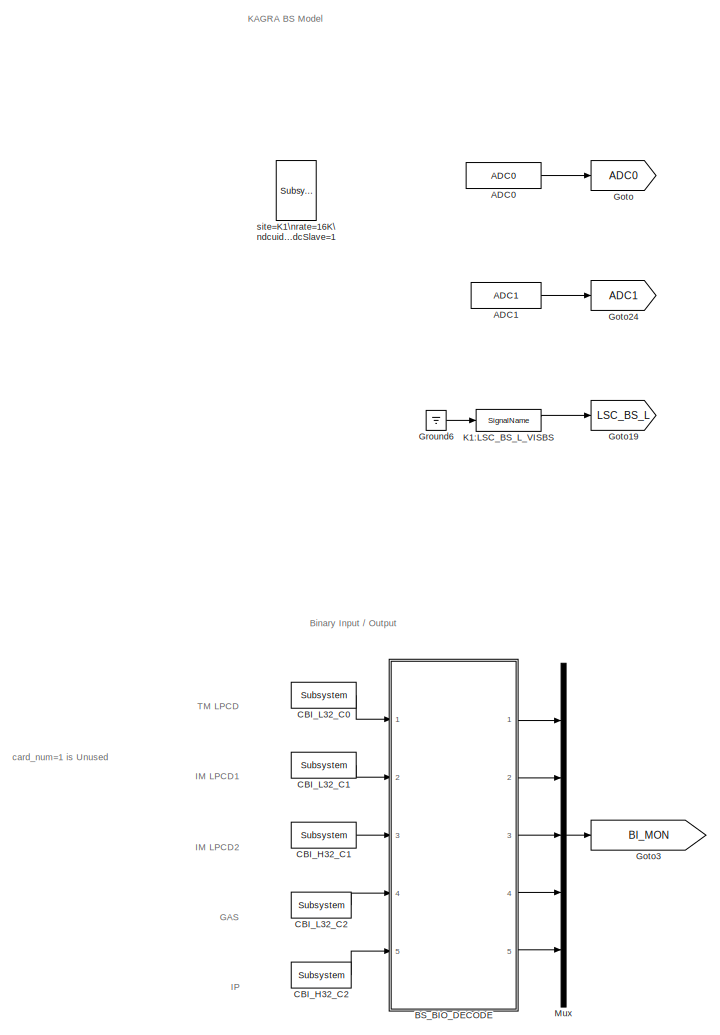
[diagram: root canvas - part 1/4, top left region]
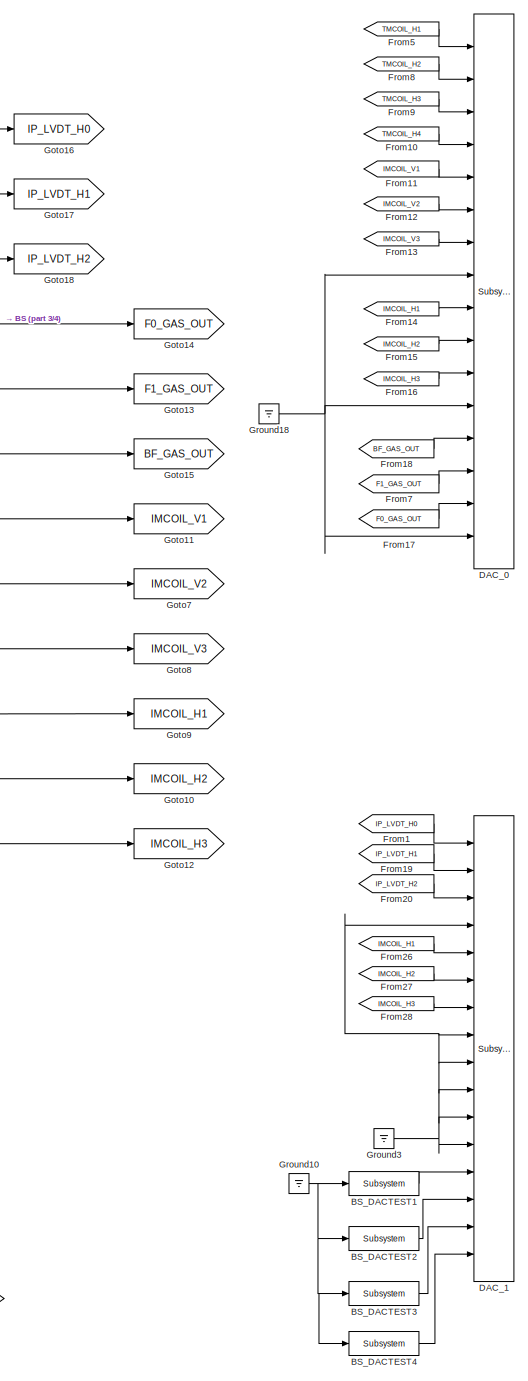
[diagram: root canvas - part 2/4, right side, full height]
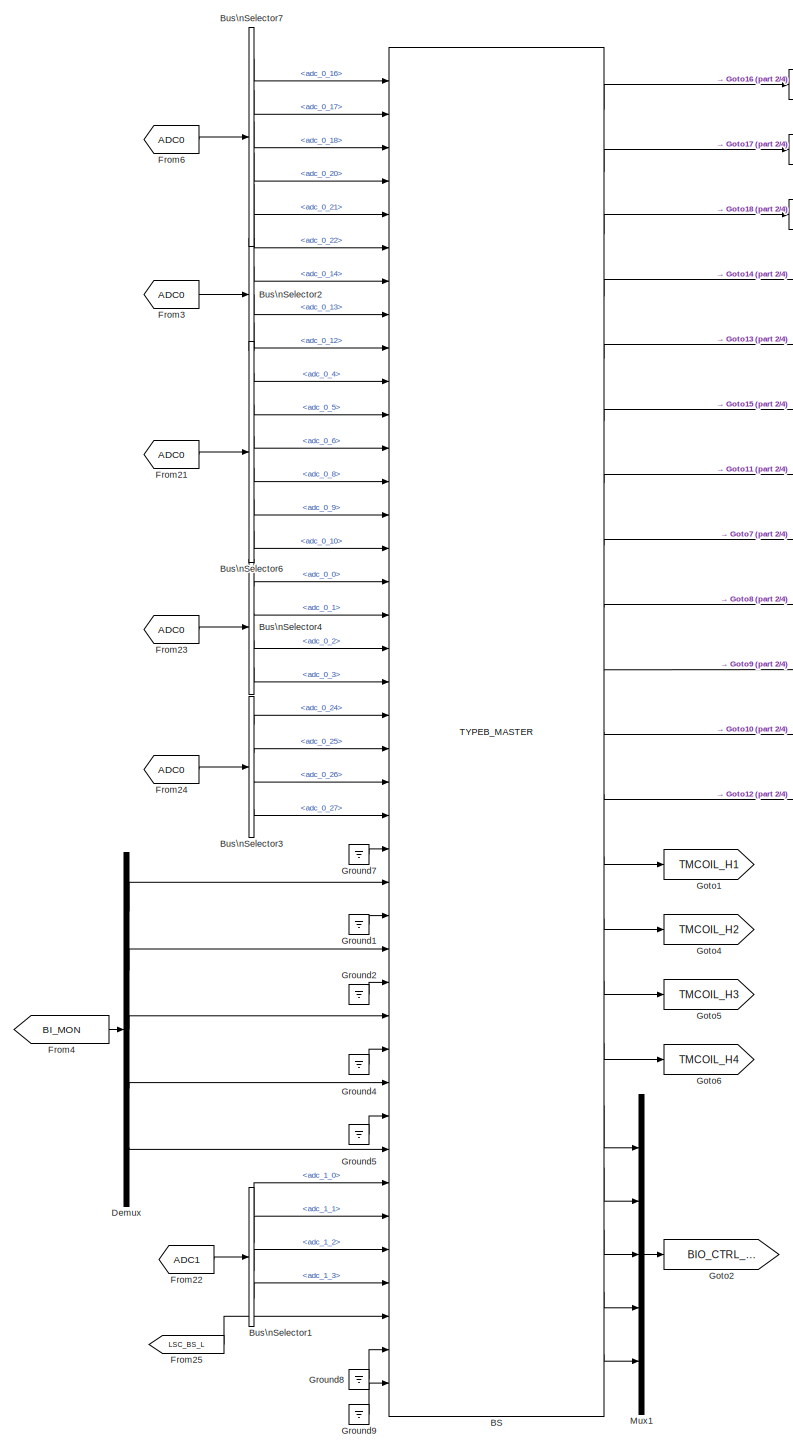
[diagram: root canvas - part 3/4, center side, full height]
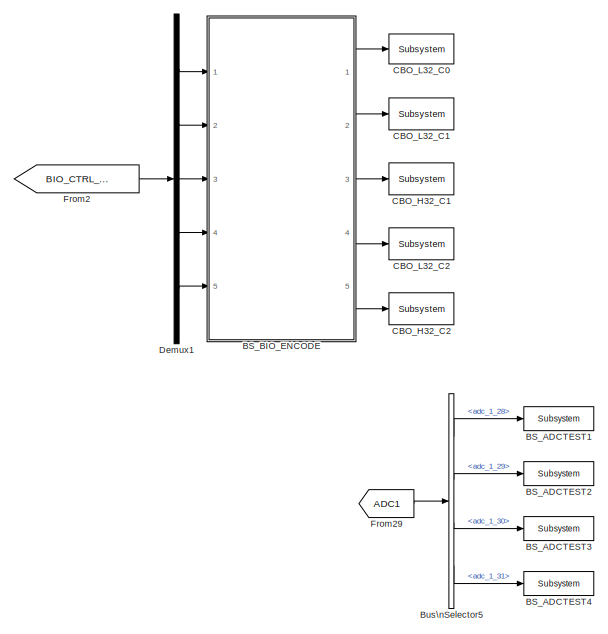
[diagram: root canvas - part 4/4, bottom left region]
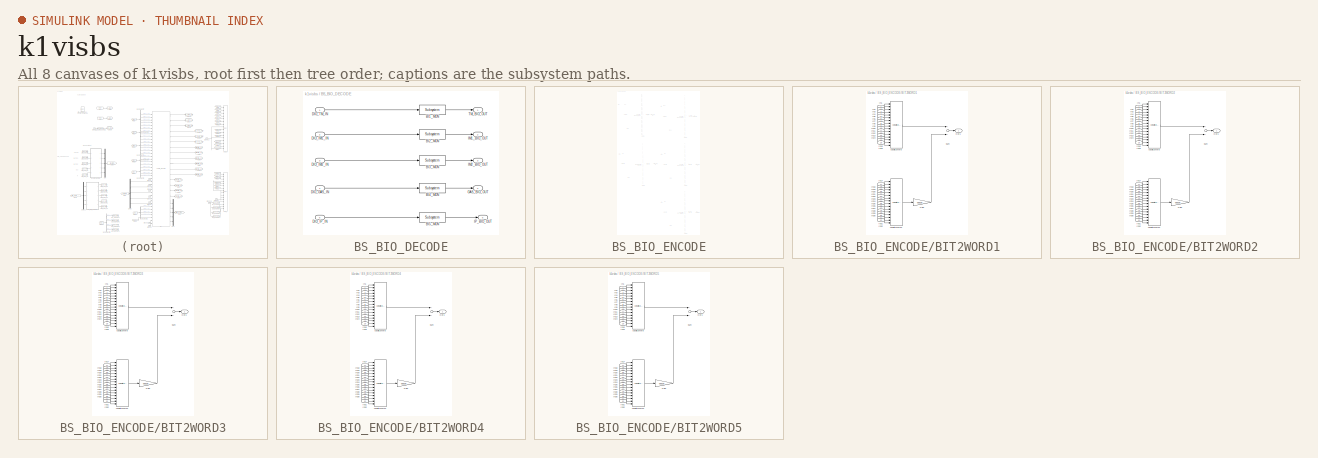
[diagram: thumbnail index - all 8 canvases of the model, root first then tree order]
MODEL k1visbs
KIND model
BLOCK [Reference] ADC0  REF=cdsAdcx0/ADC0
  AttributesFormatString = %<Description>\\n%<Tag>
  Description = type-GSC_16AI64SSA\ncard_num=0
  Ports = [0, 1]
  SID = 271
  SourceBlock = cdsAdcx0/ADC0
  SourceType = SubSystem
  Tag = cdsAdc
BLOCK [Reference] ADC1  REF=cdsAdcx1/ADC1
  AttributesFormatString = %<Description>\\n%<Tag>
  Description = type-GSC_16AI64SSA\ncard_num=1
  Ports = [0, 1]
  SID = 534
  SourceBlock = cdsAdcx1/ADC1
  SourceType = SubSystem
  Tag = cdsAdc
BLOCK [Reference] BS  REF=TYPEB_MASTER/TYPEB_MASTER
  Ports = [40, 21]
  SID = 1826
  SourceBlock = TYPEB_MASTER/TYPEB_MASTER
  SourceType = SubSystem
BLOCK [Reference] BS_ADCTEST1  REF=cdsFilt/Subsystem
  AttributesFormatString = %<Tag>
  Description = Purpose:                                                                                                                                                                                                                                  \nStandard CDS IIR filter module.                                                                                                                                     ...<+1302ch>  <repeated x8 — deduplicated; at blocks: BS_ADCTEST1, BS_ADCTEST2, BS_ADCTEST3, BS_ADCTEST4, BS_DACTEST1, BS_DACTEST2, BS_DACTEST3, BS_DACTEST4>
  Ports = [1, 1]
  SID = 1875
  SourceBlock = cdsFilt/Subsystem
  SourceType = SubSystem
  Tag = cdsFilt
BLOCK [Reference] BS_ADCTEST2  REF=cdsFilt/Subsystem
  AttributesFormatString = %<Tag>
  Ports = [1, 1]
  SID = 1876
  SourceBlock = cdsFilt/Subsystem
  SourceType = SubSystem
  Tag = cdsFilt
BLOCK [Reference] BS_ADCTEST3  REF=cdsFilt/Subsystem
  AttributesFormatString = %<Tag>
  Ports = [1, 1]
  SID = 1877
  SourceBlock = cdsFilt/Subsystem
  SourceType = SubSystem
  Tag = cdsFilt
BLOCK [Reference] BS_ADCTEST4  REF=cdsFilt/Subsystem
  AttributesFormatString = %<Tag>
  Ports = [1, 1]
  SID = 1878
  SourceBlock = cdsFilt/Subsystem
  SourceType = SubSystem
  Tag = cdsFilt
BLOCK [SubSystem] BS_BIO_DECODE
  Ports = [5, 5]
  RequestExecContextInheritance = off
  SID = 873
  Variant = off
BLOCK [Reference] BS_BIO_DECODE/BI1_MON  REF=cdsEpicsOut/Subsystem
  AttributesFormatString = %<Tag>
  Description = Purpose:                                          \nOutput a FE signal to an EPICS channel.           \n                                                  \nOperation:                                        \nTakes input value and passes it to EPICS record.  \n                                                  \nUsage:                                            \nName the part with the desired EPICS...<+14ch>  <repeated x10 — deduplicated; at blocks: BI1_MON, BI2_MON, BI3_MON, BI4_MON, BI5_MON, DIO_0_OUT, DIO_1_OUT, DIO_2_OUT, DIO_3_OUT, DIO_4_OUT>
  Ports = [1, 1]
  SID = 940
  SourceBlock = cdsEpicsOut/Subsystem
  SourceType = SubSystem
  Tag = cdsEpicsOutput
BLOCK [Reference] BS_BIO_DECODE/BI2_MON  REF=cdsEpicsOut/Subsystem
  AttributesFormatString = %<Tag>
  Ports = [1, 1]
  SID = 941
  SourceBlock = cdsEpicsOut/Subsystem
  SourceType = SubSystem
  Tag = cdsEpicsOutput
BLOCK [Reference] BS_BIO_DECODE/BI3_MON  REF=cdsEpicsOut/Subsystem
  AttributesFormatString = %<Tag>
  Ports = [1, 1]
  SID = 1215
  SourceBlock = cdsEpicsOut/Subsystem
  SourceType = SubSystem
  Tag = cdsEpicsOutput
BLOCK [Reference] BS_BIO_DECODE/BI4_MON  REF=cdsEpicsOut/Subsystem
  AttributesFormatString = %<Tag>
  Ports = [1, 1]
  SID = 1217
  SourceBlock = cdsEpicsOut/Subsystem
  SourceType = SubSystem
  Tag = cdsEpicsOutput
BLOCK [Reference] BS_BIO_DECODE/BI5_MON  REF=cdsEpicsOut/Subsystem
  AttributesFormatString = %<Tag>
  Ports = [1, 1]
  SID = 1709
  SourceBlock = cdsEpicsOut/Subsystem
  SourceType = SubSystem
  Tag = cdsEpicsOutput
BLOCK [Inport] BS_BIO_DECODE/DIO_GAS_IN
  IconDisplay = Port number
  Port = 4
  SID = 1216
BLOCK [Inport] BS_BIO_DECODE/DIO_IM1_IN
  IconDisplay = Port number
  Port = 2
  SID = 875
BLOCK [Inport] BS_BIO_DECODE/DIO_IM2_IN
  IconDisplay = Port number
  Port = 3
  SID = 1214
BLOCK [Inport] BS_BIO_DECODE/DIO_IP_IN
  IconDisplay = Port number
  Port = 5
  SID = 1711
BLOCK [Inport] BS_BIO_DECODE/DIO_TM_IN
  IconDisplay = Port number
  SID = 874
BLOCK [Outport] BS_BIO_DECODE/GAS_BIO_OUT
  IconDisplay = Port number
  Port = 4
  SID = 1742
BLOCK [Outport] BS_BIO_DECODE/IM1_BIO_OUT
  IconDisplay = Port number
  Port = 2
  SID = 1740
BLOCK [Outport] BS_BIO_DECODE/IM2_BIO_OUT
  IconDisplay = Port number
  Port = 3
  SID = 1741
BLOCK [Outport] BS_BIO_DECODE/IP_BIO_OUT
  IconDisplay = Port number
  Port = 5
  SID = 1743
BLOCK [Outport] BS_BIO_DECODE/TM_BIO_OUT
  IconDisplay = Port number
  SID = 1696
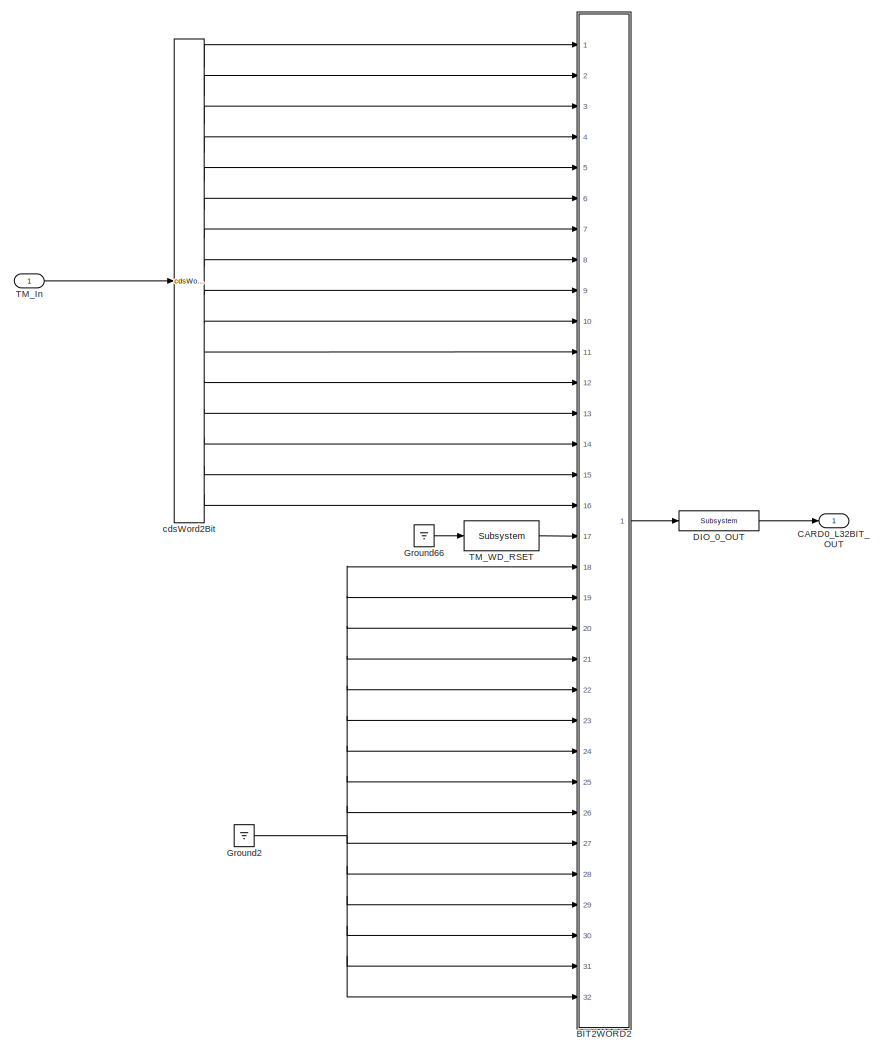
[diagram: BS_BIO_ENCODE - part 1/5, top left region]
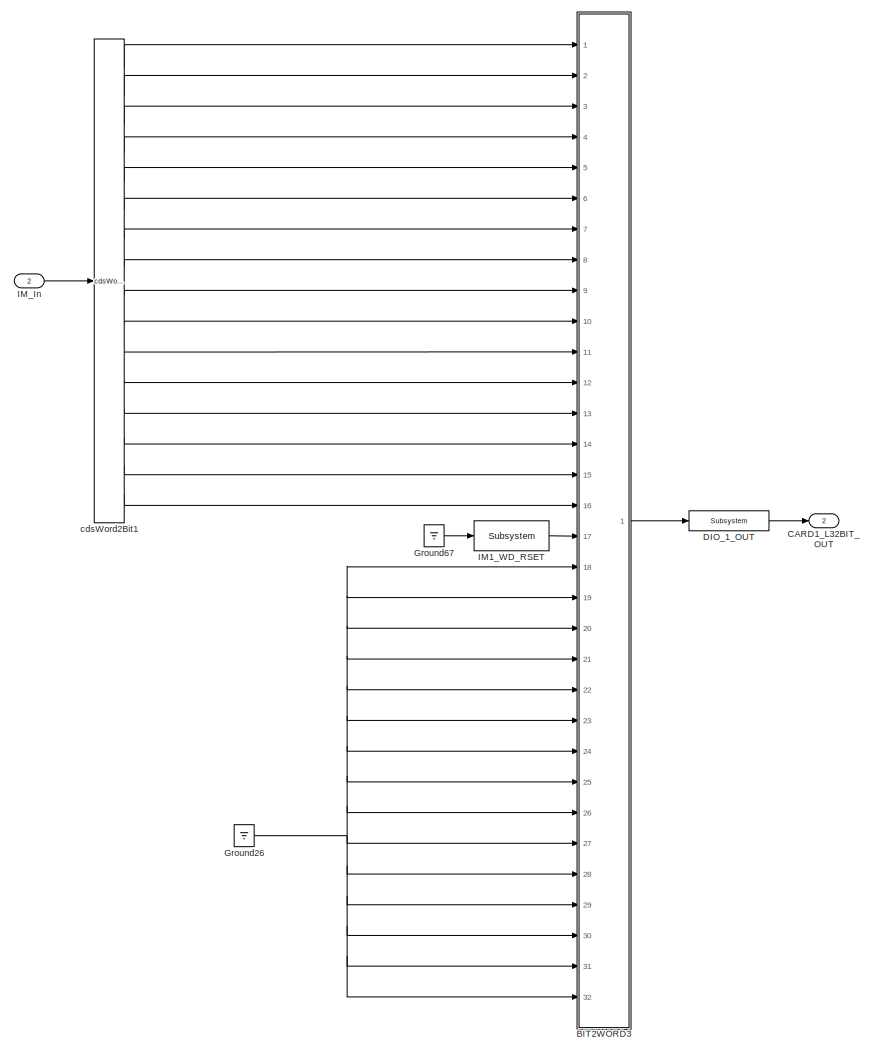
[diagram: BS_BIO_ENCODE - part 2/5, top right region]
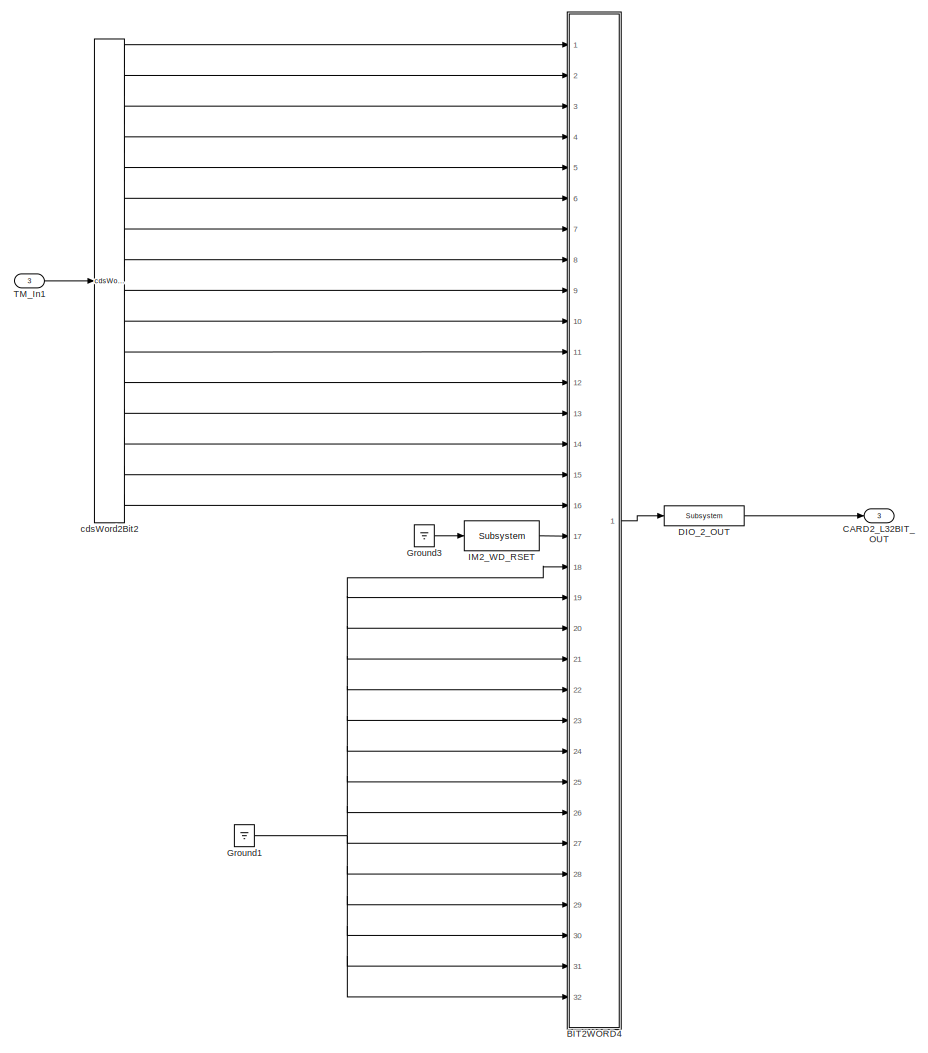
[diagram: BS_BIO_ENCODE - part 3/5, middle left region]
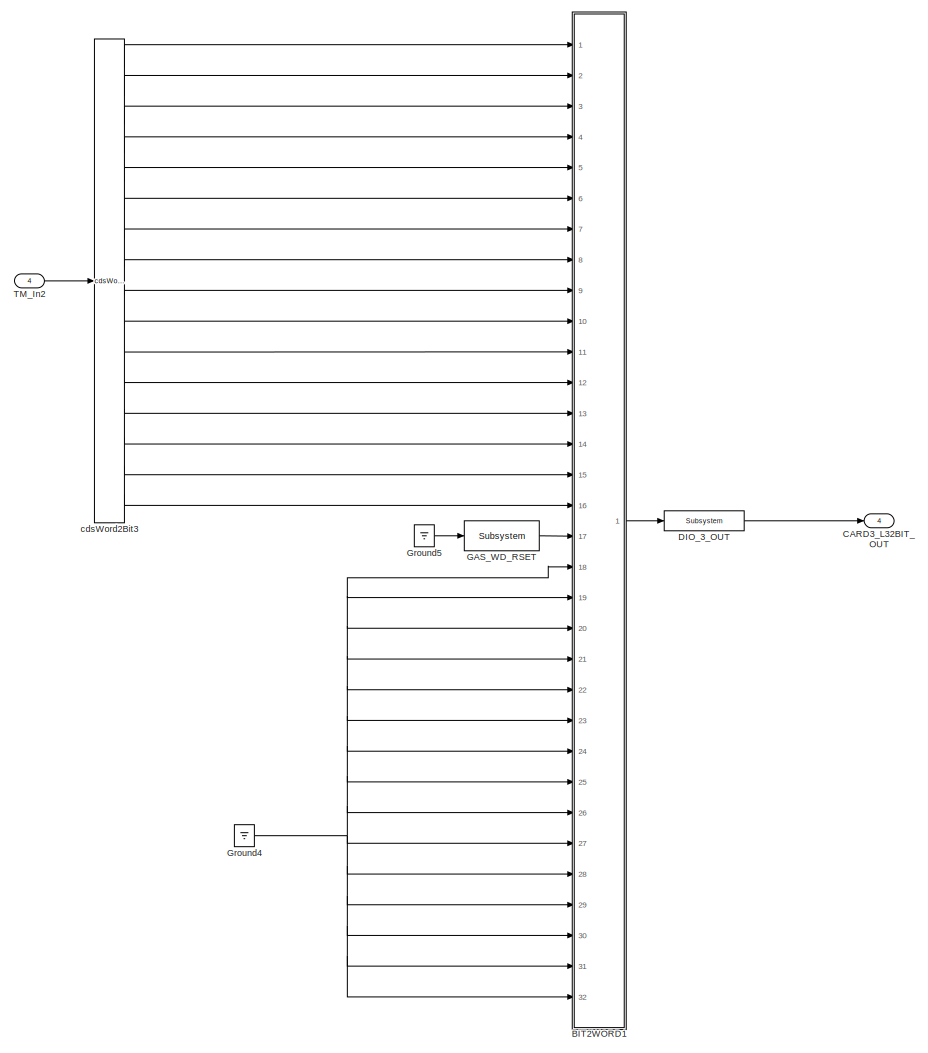
[diagram: BS_BIO_ENCODE - part 4/5, middle right region]
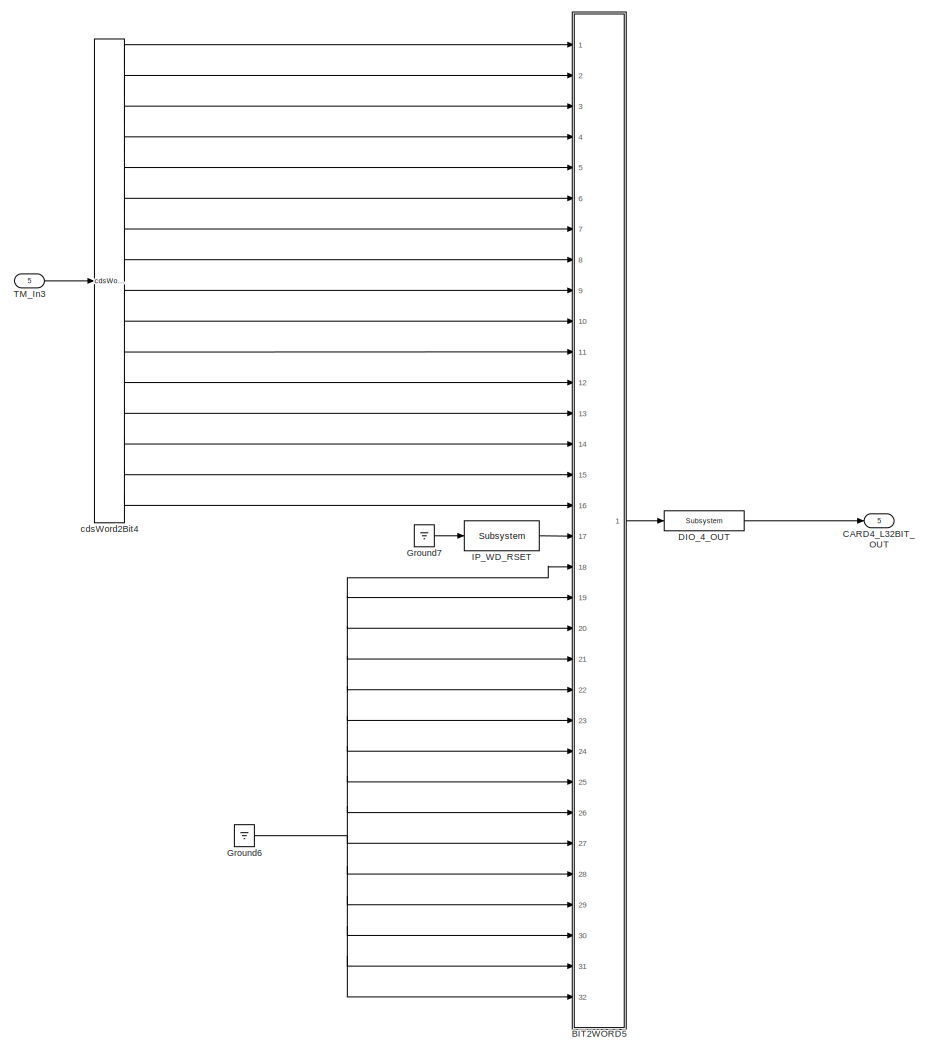
[diagram: BS_BIO_ENCODE - part 5/5, bottom right region]
BLOCK [SubSystem] BS_BIO_ENCODE
  Ports = [5, 5]
  RequestExecContextInheritance = off
  SID = 1012
  Variant = off
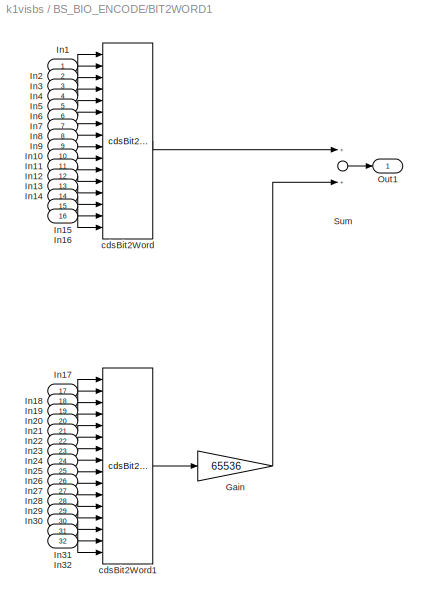
BLOCK [SubSystem] BS_BIO_ENCODE/BIT2WORD1
  Ports = [32, 1]
  RequestExecContextInheritance = off
  SID = 1013
  Variant = off
BLOCK [Gain] BS_BIO_ENCODE/BIT2WORD1/Gain
  Gain = 65536
  OutDataTypeStr = Inherit: Inherit via internal rule
  ParamDataTypeStr = Inherit: Inherit via internal rule
  SID = 1046
  SaturateOnIntegerOverflow = off
BLOCK [Inport] BS_BIO_ENCODE/BIT2WORD1/In1
  IconDisplay = Port number
  SID = 1014
BLOCK [Inport] BS_BIO_ENCODE/BIT2WORD1/In10
  IconDisplay = Port number
  Port = 10
  SID = 1023
BLOCK [Inport] BS_BIO_ENCODE/BIT2WORD1/In11
  IconDisplay = Port number
  Port = 11
  SID = 1024
BLOCK [Inport] BS_BIO_ENCODE/BIT2WORD1/In12
  IconDisplay = Port number
  Port = 12
  SID = 1025
BLOCK [Inport] BS_BIO_ENCODE/BIT2WORD1/In13
  IconDisplay = Port number
  Port = 13
  SID = 1026
BLOCK [Inport] BS_BIO_ENCODE/BIT2WORD1/In14
  IconDisplay = Port number
  Port = 14
  SID = 1027
BLOCK [Inport] BS_BIO_ENCODE/BIT2WORD1/In15
  IconDisplay = Port number
  Port = 15
  SID = 1028
BLOCK [Inport] BS_BIO_ENCODE/BIT2WORD1/In16
  IconDisplay = Port number
  Port = 16
  SID = 1029
BLOCK [Inport] BS_BIO_ENCODE/BIT2WORD1/In17
  IconDisplay = Port number
  Port = 17
  SID = 1030
BLOCK [Inport] BS_BIO_ENCODE/BIT2WORD1/In18
  IconDisplay = Port number
  Port = 18
  SID = 1031
BLOCK [Inport] BS_BIO_ENCODE/BIT2WORD1/In19
  IconDisplay = Port number
  Port = 19
  SID = 1032
BLOCK [Inport] BS_BIO_ENCODE/BIT2WORD1/In2
  IconDisplay = Port number
  Port = 2
  SID = 1015
BLOCK [Inport] BS_BIO_ENCODE/BIT2WORD1/In20
  IconDisplay = Port number
  Port = 20
  SID = 1033
BLOCK [Inport] BS_BIO_ENCODE/BIT2WORD1/In21
  IconDisplay = Port number
  Port = 21
  SID = 1034
BLOCK [Inport] BS_BIO_ENCODE/BIT2WORD1/In22
  IconDisplay = Port number
  Port = 22
  SID = 1035
BLOCK [Inport] BS_BIO_ENCODE/BIT2WORD1/In23
  IconDisplay = Port number
  Port = 23
  SID = 1036
BLOCK [Inport] BS_BIO_ENCODE/BIT2WORD1/In24
  IconDisplay = Port number
  Port = 24
  SID = 1037
BLOCK [Inport] BS_BIO_ENCODE/BIT2WORD1/In25
  IconDisplay = Port number
  Port = 25
  SID = 1038
BLOCK [Inport] BS_BIO_ENCODE/BIT2WORD1/In26
  IconDisplay = Port number
  Port = 26
  SID = 1039
BLOCK [Inport] BS_BIO_ENCODE/BIT2WORD1/In27
  IconDisplay = Port number
  Port = 27
  SID = 1040
BLOCK [Inport] BS_BIO_ENCODE/BIT2WORD1/In28
  IconDisplay = Port number
  Port = 28
  SID = 1041
BLOCK [Inport] BS_BIO_ENCODE/BIT2WORD1/In29
  IconDisplay = Port number
  Port = 29
  SID = 1042
BLOCK [Inport] BS_BIO_ENCODE/BIT2WORD1/In3
  IconDisplay = Port number
  Port = 3
  SID = 1016
BLOCK [Inport] BS_BIO_ENCODE/BIT2WORD1/In30
  IconDisplay = Port number
  Port = 30
  SID = 1043
BLOCK [Inport] BS_BIO_ENCODE/BIT2WORD1/In31
  IconDisplay = Port number
  Port = 31
  SID = 1044
BLOCK [Inport] BS_BIO_ENCODE/BIT2WORD1/In32
  IconDisplay = Port number
  Port = 32
  SID = 1045
BLOCK [Inport] BS_BIO_ENCODE/BIT2WORD1/In4
  IconDisplay = Port number
  Port = 4
  SID = 1017
BLOCK [Inport] BS_BIO_ENCODE/BIT2WORD1/In5
  IconDisplay = Port number
  Port = 5
  SID = 1018
BLOCK [Inport] BS_BIO_ENCODE/BIT2WORD1/In6
  IconDisplay = Port number
  Port = 6
  SID = 1019
BLOCK [Inport] BS_BIO_ENCODE/BIT2WORD1/In7
  IconDisplay = Port number
  Port = 7
  SID = 1020
BLOCK [Inport] BS_BIO_ENCODE/BIT2WORD1/In8
  IconDisplay = Port number
  Port = 8
  SID = 1021
BLOCK [Inport] BS_BIO_ENCODE/BIT2WORD1/In9
  IconDisplay = Port number
  Port = 9
  SID = 1022
BLOCK [Outport] BS_BIO_ENCODE/BIT2WORD1/Out1
  IconDisplay = Port number
  SID = 1050
BLOCK [Sum] BS_BIO_ENCODE/BIT2WORD1/Sum
  InputSameDT = off
  OutDataTypeStr = Inherit: Inherit via internal rule
  Ports = [2, 1]
  SID = 1047
  SaturateOnIntegerOverflow = off
BLOCK [Reference] BS_BIO_ENCODE/BIT2WORD1/cdsBit2Word  REF=cdsBit2Word/cdsBit2Word
  AttributesFormatString = %<Tag>
  Description = Forms single 16 bit integer from 16 0/1 inputs.
  Ports = [16, 1]
  SID = 1048
  SourceBlock = cdsBit2Word/cdsBit2Word
  SourceType = SubSystem
  Tag = cdsBit2Word
BLOCK [Reference] BS_BIO_ENCODE/BIT2WORD1/cdsBit2Word1  REF=cdsBit2Word/cdsBit2Word
  AttributesFormatString = %<Tag>
  Description = Forms single 16 bit integer from 16 0/1 inputs.
  Ports = [16, 1]
  SID = 1049
  SourceBlock = cdsBit2Word/cdsBit2Word
  SourceType = SubSystem
  Tag = cdsBit2Word
BLOCK [SubSystem] BS_BIO_ENCODE/BIT2WORD2
  Ports = [32, 1]
  RequestExecContextInheritance = off
  SID = 1051
  Variant = off
BLOCK [Gain] BS_BIO_ENCODE/BIT2WORD2/Gain
  Gain = 65536
  OutDataTypeStr = Inherit: Inherit via internal rule
  ParamDataTypeStr = Inherit: Inherit via internal rule
  SID = 1084
  SaturateOnIntegerOverflow = off
BLOCK [Inport] BS_BIO_ENCODE/BIT2WORD2/In1
  IconDisplay = Port number
  SID = 1052
BLOCK [Inport] BS_BIO_ENCODE/BIT2WORD2/In10
  IconDisplay = Port number
  Port = 10
  SID = 1061
BLOCK [Inport] BS_BIO_ENCODE/BIT2WORD2/In11
  IconDisplay = Port number
  Port = 11
  SID = 1062
BLOCK [Inport] BS_BIO_ENCODE/BIT2WORD2/In12
  IconDisplay = Port number
  Port = 12
  SID = 1063
BLOCK [Inport] BS_BIO_ENCODE/BIT2WORD2/In13
  IconDisplay = Port number
  Port = 13
  SID = 1064
BLOCK [Inport] BS_BIO_ENCODE/BIT2WORD2/In14
  IconDisplay = Port number
  Port = 14
  SID = 1065
BLOCK [Inport] BS_BIO_ENCODE/BIT2WORD2/In15
  IconDisplay = Port number
  Port = 15
  SID = 1066
BLOCK [Inport] BS_BIO_ENCODE/BIT2WORD2/In16
  IconDisplay = Port number
  Port = 16
  SID = 1067
BLOCK [Inport] BS_BIO_ENCODE/BIT2WORD2/In17
  IconDisplay = Port number
  Port = 17
  SID = 1068
BLOCK [Inport] BS_BIO_ENCODE/BIT2WORD2/In18
  IconDisplay = Port number
  Port = 18
  SID = 1069
BLOCK [Inport] BS_BIO_ENCODE/BIT2WORD2/In19
  IconDisplay = Port number
  Port = 19
  SID = 1070
BLOCK [Inport] BS_BIO_ENCODE/BIT2WORD2/In2
  IconDisplay = Port number
  Port = 2
  SID = 1053
BLOCK [Inport] BS_BIO_ENCODE/BIT2WORD2/In20
  IconDisplay = Port number
  Port = 20
  SID = 1071
BLOCK [Inport] BS_BIO_ENCODE/BIT2WORD2/In21
  IconDisplay = Port number
  Port = 21
  SID = 1072
BLOCK [Inport] BS_BIO_ENCODE/BIT2WORD2/In22
  IconDisplay = Port number
  Port = 22
  SID = 1073
BLOCK [Inport] BS_BIO_ENCODE/BIT2WORD2/In23
  IconDisplay = Port number
  Port = 23
  SID = 1074
BLOCK [Inport] BS_BIO_ENCODE/BIT2WORD2/In24
  IconDisplay = Port number
  Port = 24
  SID = 1075
BLOCK [Inport] BS_BIO_ENCODE/BIT2WORD2/In25
  IconDisplay = Port number
  Port = 25
  SID = 1076
BLOCK [Inport] BS_BIO_ENCODE/BIT2WORD2/In26
  IconDisplay = Port number
  Port = 26
  SID = 1077
BLOCK [Inport] BS_BIO_ENCODE/BIT2WORD2/In27
  IconDisplay = Port number
  Port = 27
  SID = 1078
BLOCK [Inport] BS_BIO_ENCODE/BIT2WORD2/In28
  IconDisplay = Port number
  Port = 28
  SID = 1079
BLOCK [Inport] BS_BIO_ENCODE/BIT2WORD2/In29
  IconDisplay = Port number
  Port = 29
  SID = 1080
BLOCK [Inport] BS_BIO_ENCODE/BIT2WORD2/In3
  IconDisplay = Port number
  Port = 3
  SID = 1054
BLOCK [Inport] BS_BIO_ENCODE/BIT2WORD2/In30
  IconDisplay = Port number
  Port = 30
  SID = 1081
BLOCK [Inport] BS_BIO_ENCODE/BIT2WORD2/In31
  IconDisplay = Port number
  Port = 31
  SID = 1082
BLOCK [Inport] BS_BIO_ENCODE/BIT2WORD2/In32
  IconDisplay = Port number
  Port = 32
  SID = 1083
BLOCK [Inport] BS_BIO_ENCODE/BIT2WORD2/In4
  IconDisplay = Port number
  Port = 4
  SID = 1055
BLOCK [Inport] BS_BIO_ENCODE/BIT2WORD2/In5
  IconDisplay = Port number
  Port = 5
  SID = 1056
BLOCK [Inport] BS_BIO_ENCODE/BIT2WORD2/In6
  IconDisplay = Port number
  Port = 6
  SID = 1057
BLOCK [Inport] BS_BIO_ENCODE/BIT2WORD2/In7
  IconDisplay = Port number
  Port = 7
  SID = 1058
BLOCK [Inport] BS_BIO_ENCODE/BIT2WORD2/In8
  IconDisplay = Port number
  Port = 8
  SID = 1059
BLOCK [Inport] BS_BIO_ENCODE/BIT2WORD2/In9
  IconDisplay = Port number
  Port = 9
  SID = 1060
BLOCK [Outport] BS_BIO_ENCODE/BIT2WORD2/Out1
  IconDisplay = Port number
  SID = 1088
BLOCK [Sum] BS_BIO_ENCODE/BIT2WORD2/Sum
  InputSameDT = off
  OutDataTypeStr = Inherit: Inherit via internal rule
  Ports = [2, 1]
  SID = 1085
  SaturateOnIntegerOverflow = off
BLOCK [Reference] BS_BIO_ENCODE/BIT2WORD2/cdsBit2Word  REF=cdsBit2Word/cdsBit2Word
  AttributesFormatString = %<Tag>
  Description = Forms single 16 bit integer from 16 0/1 inputs.
  Ports = [16, 1]
  SID = 1086
  SourceBlock = cdsBit2Word/cdsBit2Word
  SourceType = SubSystem
  Tag = cdsBit2Word
BLOCK [Reference] BS_BIO_ENCODE/BIT2WORD2/cdsBit2Word1  REF=cdsBit2Word/cdsBit2Word
  AttributesFormatString = %<Tag>
  Description = Forms single 16 bit integer from 16 0/1 inputs.
  Ports = [16, 1]
  SID = 1087
  SourceBlock = cdsBit2Word/cdsBit2Word
  SourceType = SubSystem
  Tag = cdsBit2Word
BLOCK [SubSystem] BS_BIO_ENCODE/BIT2WORD3
  Ports = [32, 1]
  RequestExecContextInheritance = off
  SID = 1551
  Variant = off
BLOCK [Gain] BS_BIO_ENCODE/BIT2WORD3/Gain
  Gain = 65536
  OutDataTypeStr = Inherit: Inherit via internal rule
  ParamDataTypeStr = Inherit: Inherit via internal rule
  SID = 1584
  SaturateOnIntegerOverflow = off
BLOCK [Inport] BS_BIO_ENCODE/BIT2WORD3/In1
  IconDisplay = Port number
  SID = 1552
BLOCK [Inport] BS_BIO_ENCODE/BIT2WORD3/In10
  IconDisplay = Port number
  Port = 10
  SID = 1561
BLOCK [Inport] BS_BIO_ENCODE/BIT2WORD3/In11
  IconDisplay = Port number
  Port = 11
  SID = 1562
BLOCK [Inport] BS_BIO_ENCODE/BIT2WORD3/In12
  IconDisplay = Port number
  Port = 12
  SID = 1563
BLOCK [Inport] BS_BIO_ENCODE/BIT2WORD3/In13
  IconDisplay = Port number
  Port = 13
  SID = 1564
BLOCK [Inport] BS_BIO_ENCODE/BIT2WORD3/In14
  IconDisplay = Port number
  Port = 14
  SID = 1565
BLOCK [Inport] BS_BIO_ENCODE/BIT2WORD3/In15
  IconDisplay = Port number
  Port = 15
  SID = 1566
BLOCK [Inport] BS_BIO_ENCODE/BIT2WORD3/In16
  IconDisplay = Port number
  Port = 16
  SID = 1567
BLOCK [Inport] BS_BIO_ENCODE/BIT2WORD3/In17
  IconDisplay = Port number
  Port = 17
  SID = 1568
BLOCK [Inport] BS_BIO_ENCODE/BIT2WORD3/In18
  IconDisplay = Port number
  Port = 18
  SID = 1569
BLOCK [Inport] BS_BIO_ENCODE/BIT2WORD3/In19
  IconDisplay = Port number
  Port = 19
  SID = 1570
BLOCK [Inport] BS_BIO_ENCODE/BIT2WORD3/In2
  IconDisplay = Port number
  Port = 2
  SID = 1553
BLOCK [Inport] BS_BIO_ENCODE/BIT2WORD3/In20
  IconDisplay = Port number
  Port = 20
  SID = 1571
BLOCK [Inport] BS_BIO_ENCODE/BIT2WORD3/In21
  IconDisplay = Port number
  Port = 21
  SID = 1572
BLOCK [Inport] BS_BIO_ENCODE/BIT2WORD3/In22
  IconDisplay = Port number
  Port = 22
  SID = 1573
BLOCK [Inport] BS_BIO_ENCODE/BIT2WORD3/In23
  IconDisplay = Port number
  Port = 23
  SID = 1574
BLOCK [Inport] BS_BIO_ENCODE/BIT2WORD3/In24
  IconDisplay = Port number
  Port = 24
  SID = 1575
BLOCK [Inport] BS_BIO_ENCODE/BIT2WORD3/In25
  IconDisplay = Port number
  Port = 25
  SID = 1576
BLOCK [Inport] BS_BIO_ENCODE/BIT2WORD3/In26
  IconDisplay = Port number
  Port = 26
  SID = 1577
BLOCK [Inport] BS_BIO_ENCODE/BIT2WORD3/In27
  IconDisplay = Port number
  Port = 27
  SID = 1578
BLOCK [Inport] BS_BIO_ENCODE/BIT2WORD3/In28
  IconDisplay = Port number
  Port = 28
  SID = 1579
BLOCK [Inport] BS_BIO_ENCODE/BIT2WORD3/In29
  IconDisplay = Port number
  Port = 29
  SID = 1580
BLOCK [Inport] BS_BIO_ENCODE/BIT2WORD3/In3
  IconDisplay = Port number
  Port = 3
  SID = 1554
BLOCK [Inport] BS_BIO_ENCODE/BIT2WORD3/In30
  IconDisplay = Port number
  Port = 30
  SID = 1581
BLOCK [Inport] BS_BIO_ENCODE/BIT2WORD3/In31
  IconDisplay = Port number
  Port = 31
  SID = 1582
BLOCK [Inport] BS_BIO_ENCODE/BIT2WORD3/In32
  IconDisplay = Port number
  Port = 32
  SID = 1583
BLOCK [Inport] BS_BIO_ENCODE/BIT2WORD3/In4
  IconDisplay = Port number
  Port = 4
  SID = 1555
BLOCK [Inport] BS_BIO_ENCODE/BIT2WORD3/In5
  IconDisplay = Port number
  Port = 5
  SID = 1556
BLOCK [Inport] BS_BIO_ENCODE/BIT2WORD3/In6
  IconDisplay = Port number
  Port = 6
  SID = 1557
BLOCK [Inport] BS_BIO_ENCODE/BIT2WORD3/In7
  IconDisplay = Port number
  Port = 7
  SID = 1558
BLOCK [Inport] BS_BIO_ENCODE/BIT2WORD3/In8
  IconDisplay = Port number
  Port = 8
  SID = 1559
BLOCK [Inport] BS_BIO_ENCODE/BIT2WORD3/In9
  IconDisplay = Port number
  Port = 9
  SID = 1560
BLOCK [Outport] BS_BIO_ENCODE/BIT2WORD3/Out1
  IconDisplay = Port number
  SID = 1588
BLOCK [Sum] BS_BIO_ENCODE/BIT2WORD3/Sum
  InputSameDT = off
  OutDataTypeStr = Inherit: Inherit via internal rule
  Ports = [2, 1]
  SID = 1585
  SaturateOnIntegerOverflow = off
BLOCK [Reference] BS_BIO_ENCODE/BIT2WORD3/cdsBit2Word  REF=cdsBit2Word/cdsBit2Word
  AttributesFormatString = %<Tag>
  Description = Forms single 16 bit integer from 16 0/1 inputs.
  Ports = [16, 1]
  SID = 1586
  SourceBlock = cdsBit2Word/cdsBit2Word
  SourceType = SubSystem
  Tag = cdsBit2Word
BLOCK [Reference] BS_BIO_ENCODE/BIT2WORD3/cdsBit2Word1  REF=cdsBit2Word/cdsBit2Word
  AttributesFormatString = %<Tag>
  Description = Forms single 16 bit integer from 16 0/1 inputs.
  Ports = [16, 1]
  SID = 1587
  SourceBlock = cdsBit2Word/cdsBit2Word
  SourceType = SubSystem
  Tag = cdsBit2Word
BLOCK [SubSystem] BS_BIO_ENCODE/BIT2WORD4
  Ports = [32, 1]
  RequestExecContextInheritance = off
  SID = 1591
  Variant = off
BLOCK [Gain] BS_BIO_ENCODE/BIT2WORD4/Gain
  Gain = 65536
  OutDataTypeStr = Inherit: Inherit via internal rule
  ParamDataTypeStr = Inherit: Inherit via internal rule
  SID = 1624
  SaturateOnIntegerOverflow = off
BLOCK [Inport] BS_BIO_ENCODE/BIT2WORD4/In1
  IconDisplay = Port number
  SID = 1592
BLOCK [Inport] BS_BIO_ENCODE/BIT2WORD4/In10
  IconDisplay = Port number
  Port = 10
  SID = 1601
BLOCK [Inport] BS_BIO_ENCODE/BIT2WORD4/In11
  IconDisplay = Port number
  Port = 11
  SID = 1602
BLOCK [Inport] BS_BIO_ENCODE/BIT2WORD4/In12
  IconDisplay = Port number
  Port = 12
  SID = 1603
BLOCK [Inport] BS_BIO_ENCODE/BIT2WORD4/In13
  IconDisplay = Port number
  Port = 13
  SID = 1604
BLOCK [Inport] BS_BIO_ENCODE/BIT2WORD4/In14
  IconDisplay = Port number
  Port = 14
  SID = 1605
BLOCK [Inport] BS_BIO_ENCODE/BIT2WORD4/In15
  IconDisplay = Port number
  Port = 15
  SID = 1606
BLOCK [Inport] BS_BIO_ENCODE/BIT2WORD4/In16
  IconDisplay = Port number
  Port = 16
  SID = 1607
BLOCK [Inport] BS_BIO_ENCODE/BIT2WORD4/In17
  IconDisplay = Port number
  Port = 17
  SID = 1608
BLOCK [Inport] BS_BIO_ENCODE/BIT2WORD4/In18
  IconDisplay = Port number
  Port = 18
  SID = 1609
BLOCK [Inport] BS_BIO_ENCODE/BIT2WORD4/In19
  IconDisplay = Port number
  Port = 19
  SID = 1610
BLOCK [Inport] BS_BIO_ENCODE/BIT2WORD4/In2
  IconDisplay = Port number
  Port = 2
  SID = 1593
BLOCK [Inport] BS_BIO_ENCODE/BIT2WORD4/In20
  IconDisplay = Port number
  Port = 20
  SID = 1611
BLOCK [Inport] BS_BIO_ENCODE/BIT2WORD4/In21
  IconDisplay = Port number
  Port = 21
  SID = 1612
BLOCK [Inport] BS_BIO_ENCODE/BIT2WORD4/In22
  IconDisplay = Port number
  Port = 22
  SID = 1613
BLOCK [Inport] BS_BIO_ENCODE/BIT2WORD4/In23
  IconDisplay = Port number
  Port = 23
  SID = 1614
BLOCK [Inport] BS_BIO_ENCODE/BIT2WORD4/In24
  IconDisplay = Port number
  Port = 24
  SID = 1615
BLOCK [Inport] BS_BIO_ENCODE/BIT2WORD4/In25
  IconDisplay = Port number
  Port = 25
  SID = 1616
BLOCK [Inport] BS_BIO_ENCODE/BIT2WORD4/In26
  IconDisplay = Port number
  Port = 26
  SID = 1617
BLOCK [Inport] BS_BIO_ENCODE/BIT2WORD4/In27
  IconDisplay = Port number
  Port = 27
  SID = 1618
BLOCK [Inport] BS_BIO_ENCODE/BIT2WORD4/In28
  IconDisplay = Port number
  Port = 28
  SID = 1619
BLOCK [Inport] BS_BIO_ENCODE/BIT2WORD4/In29
  IconDisplay = Port number
  Port = 29
  SID = 1620
BLOCK [Inport] BS_BIO_ENCODE/BIT2WORD4/In3
  IconDisplay = Port number
  Port = 3
  SID = 1594
BLOCK [Inport] BS_BIO_ENCODE/BIT2WORD4/In30
  IconDisplay = Port number
  Port = 30
  SID = 1621
BLOCK [Inport] BS_BIO_ENCODE/BIT2WORD4/In31
  IconDisplay = Port number
  Port = 31
  SID = 1622
BLOCK [Inport] BS_BIO_ENCODE/BIT2WORD4/In32
  IconDisplay = Port number
  Port = 32
  SID = 1623
BLOCK [Inport] BS_BIO_ENCODE/BIT2WORD4/In4
  IconDisplay = Port number
  Port = 4
  SID = 1595
BLOCK [Inport] BS_BIO_ENCODE/BIT2WORD4/In5
  IconDisplay = Port number
  Port = 5
  SID = 1596
BLOCK [Inport] BS_BIO_ENCODE/BIT2WORD4/In6
  IconDisplay = Port number
  Port = 6
  SID = 1597
BLOCK [Inport] BS_BIO_ENCODE/BIT2WORD4/In7
  IconDisplay = Port number
  Port = 7
  SID = 1598
BLOCK [Inport] BS_BIO_ENCODE/BIT2WORD4/In8
  IconDisplay = Port number
  Port = 8
  SID = 1599
BLOCK [Inport] BS_BIO_ENCODE/BIT2WORD4/In9
  IconDisplay = Port number
  Port = 9
  SID = 1600
BLOCK [Outport] BS_BIO_ENCODE/BIT2WORD4/Out1
  IconDisplay = Port number
  SID = 1628
BLOCK [Sum] BS_BIO_ENCODE/BIT2WORD4/Sum
  InputSameDT = off
  OutDataTypeStr = Inherit: Inherit via internal rule
  Ports = [2, 1]
  SID = 1625
  SaturateOnIntegerOverflow = off
BLOCK [Reference] BS_BIO_ENCODE/BIT2WORD4/cdsBit2Word  REF=cdsBit2Word/cdsBit2Word
  AttributesFormatString = %<Tag>
  Description = Forms single 16 bit integer from 16 0/1 inputs.
  Ports = [16, 1]
  SID = 1626
  SourceBlock = cdsBit2Word/cdsBit2Word
  SourceType = SubSystem
  Tag = cdsBit2Word
BLOCK [Reference] BS_BIO_ENCODE/BIT2WORD4/cdsBit2Word1  REF=cdsBit2Word/cdsBit2Word
  AttributesFormatString = %<Tag>
  Description = Forms single 16 bit integer from 16 0/1 inputs.
  Ports = [16, 1]
  SID = 1627
  SourceBlock = cdsBit2Word/cdsBit2Word
  SourceType = SubSystem
  Tag = cdsBit2Word
BLOCK [SubSystem] BS_BIO_ENCODE/BIT2WORD5
  Ports = [32, 1]
  RequestExecContextInheritance = off
  SID = 1773
  Variant = off
BLOCK [Gain] BS_BIO_ENCODE/BIT2WORD5/Gain
  Gain = 65536
  OutDataTypeStr = Inherit: Inherit via internal rule
  ParamDataTypeStr = Inherit: Inherit via internal rule
  SID = 1806
  SaturateOnIntegerOverflow = off
BLOCK [Inport] BS_BIO_ENCODE/BIT2WORD5/In1
  IconDisplay = Port number
  SID = 1774
BLOCK [Inport] BS_BIO_ENCODE/BIT2WORD5/In10
  IconDisplay = Port number
  Port = 10
  SID = 1783
BLOCK [Inport] BS_BIO_ENCODE/BIT2WORD5/In11
  IconDisplay = Port number
  Port = 11
  SID = 1784
BLOCK [Inport] BS_BIO_ENCODE/BIT2WORD5/In12
  IconDisplay = Port number
  Port = 12
  SID = 1785
BLOCK [Inport] BS_BIO_ENCODE/BIT2WORD5/In13
  IconDisplay = Port number
  Port = 13
  SID = 1786
BLOCK [Inport] BS_BIO_ENCODE/BIT2WORD5/In14
  IconDisplay = Port number
  Port = 14
  SID = 1787
BLOCK [Inport] BS_BIO_ENCODE/BIT2WORD5/In15
  IconDisplay = Port number
  Port = 15
  SID = 1788
BLOCK [Inport] BS_BIO_ENCODE/BIT2WORD5/In16
  IconDisplay = Port number
  Port = 16
  SID = 1789
BLOCK [Inport] BS_BIO_ENCODE/BIT2WORD5/In17
  IconDisplay = Port number
  Port = 17
  SID = 1790
BLOCK [Inport] BS_BIO_ENCODE/BIT2WORD5/In18
  IconDisplay = Port number
  Port = 18
  SID = 1791
BLOCK [Inport] BS_BIO_ENCODE/BIT2WORD5/In19
  IconDisplay = Port number
  Port = 19
  SID = 1792
BLOCK [Inport] BS_BIO_ENCODE/BIT2WORD5/In2
  IconDisplay = Port number
  Port = 2
  SID = 1775
BLOCK [Inport] BS_BIO_ENCODE/BIT2WORD5/In20
  IconDisplay = Port number
  Port = 20
  SID = 1793
BLOCK [Inport] BS_BIO_ENCODE/BIT2WORD5/In21
  IconDisplay = Port number
  Port = 21
  SID = 1794
BLOCK [Inport] BS_BIO_ENCODE/BIT2WORD5/In22
  IconDisplay = Port number
  Port = 22
  SID = 1795
BLOCK [Inport] BS_BIO_ENCODE/BIT2WORD5/In23
  IconDisplay = Port number
  Port = 23
  SID = 1796
BLOCK [Inport] BS_BIO_ENCODE/BIT2WORD5/In24
  IconDisplay = Port number
  Port = 24
  SID = 1797
BLOCK [Inport] BS_BIO_ENCODE/BIT2WORD5/In25
  IconDisplay = Port number
  Port = 25
  SID = 1798
BLOCK [Inport] BS_BIO_ENCODE/BIT2WORD5/In26
  IconDisplay = Port number
  Port = 26
  SID = 1799
BLOCK [Inport] BS_BIO_ENCODE/BIT2WORD5/In27
  IconDisplay = Port number
  Port = 27
  SID = 1800
BLOCK [Inport] BS_BIO_ENCODE/BIT2WORD5/In28
  IconDisplay = Port number
  Port = 28
  SID = 1801
BLOCK [Inport] BS_BIO_ENCODE/BIT2WORD5/In29
  IconDisplay = Port number
  Port = 29
  SID = 1802
BLOCK [Inport] BS_BIO_ENCODE/BIT2WORD5/In3
  IconDisplay = Port number
  Port = 3
  SID = 1776
BLOCK [Inport] BS_BIO_ENCODE/BIT2WORD5/In30
  IconDisplay = Port number
  Port = 30
  SID = 1803
BLOCK [Inport] BS_BIO_ENCODE/BIT2WORD5/In31
  IconDisplay = Port number
  Port = 31
  SID = 1804
BLOCK [Inport] BS_BIO_ENCODE/BIT2WORD5/In32
  IconDisplay = Port number
  Port = 32
  SID = 1805
BLOCK [Inport] BS_BIO_ENCODE/BIT2WORD5/In4
  IconDisplay = Port number
  Port = 4
  SID = 1777
BLOCK [Inport] BS_BIO_ENCODE/BIT2WORD5/In5
  IconDisplay = Port number
  Port = 5
  SID = 1778
BLOCK [Inport] BS_BIO_ENCODE/BIT2WORD5/In6
  IconDisplay = Port number
  Port = 6
  SID = 1779
BLOCK [Inport] BS_BIO_ENCODE/BIT2WORD5/In7
  IconDisplay = Port number
  Port = 7
  SID = 1780
BLOCK [Inport] BS_BIO_ENCODE/BIT2WORD5/In8
  IconDisplay = Port number
  Port = 8
  SID = 1781
BLOCK [Inport] BS_BIO_ENCODE/BIT2WORD5/In9
  IconDisplay = Port number
  Port = 9
  SID = 1782
BLOCK [Outport] BS_BIO_ENCODE/BIT2WORD5/Out1
  IconDisplay = Port number
  SID = 1810
BLOCK [Sum] BS_BIO_ENCODE/BIT2WORD5/Sum
  InputSameDT = off
  OutDataTypeStr = Inherit: Inherit via internal rule
  Ports = [2, 1]
  SID = 1807
  SaturateOnIntegerOverflow = off
BLOCK [Reference] BS_BIO_ENCODE/BIT2WORD5/cdsBit2Word  REF=cdsBit2Word/cdsBit2Word
  AttributesFormatString = %<Tag>
  Description = Forms single 16 bit integer from 16 0/1 inputs.
  Ports = [16, 1]
  SID = 1808
  SourceBlock = cdsBit2Word/cdsBit2Word
  SourceType = SubSystem
  Tag = cdsBit2Word
BLOCK [Reference] BS_BIO_ENCODE/BIT2WORD5/cdsBit2Word1  REF=cdsBit2Word/cdsBit2Word
  AttributesFormatString = %<Tag>
  Description = Forms single 16 bit integer from 16 0/1 inputs.
  Ports = [16, 1]
  SID = 1809
  SourceBlock = cdsBit2Word/cdsBit2Word
  SourceType = SubSystem
  Tag = cdsBit2Word
BLOCK [Outport] BS_BIO_ENCODE/CARD0_L32BIT_OUT
  IconDisplay = Port number
  SID = 1093
BLOCK [Outport] BS_BIO_ENCODE/CARD1_L32BIT_OUT
  IconDisplay = Port number
  Port = 2
  SID = 1094
BLOCK [Outport] BS_BIO_ENCODE/CARD2_L32BIT_OUT
  IconDisplay = Port number
  Port = 3
  SID = 1325
BLOCK [Outport] BS_BIO_ENCODE/CARD3_L32BIT_OUT
  IconDisplay = Port number
  Port = 4
  SID = 1536
BLOCK [Outport] BS_BIO_ENCODE/CARD4_L32BIT_OUT
  IconDisplay = Port number
  Port = 5
  SID = 1816
BLOCK [Reference] BS_BIO_ENCODE/DIO_0_OUT  REF=cdsEpicsOut/Subsystem
  AttributesFormatString = %<Tag>
  Ports = [1, 1]
  SID = 1089
  SourceBlock = cdsEpicsOut/Subsystem
  SourceType = SubSystem
  Tag = cdsEpicsOutput
BLOCK [Reference] BS_BIO_ENCODE/DIO_1_OUT  REF=cdsEpicsOut/Subsystem
  AttributesFormatString = %<Tag>
  Ports = [1, 1]
  SID = 1090
  SourceBlock = cdsEpicsOut/Subsystem
  SourceType = SubSystem
  Tag = cdsEpicsOutput
BLOCK [Reference] BS_BIO_ENCODE/DIO_2_OUT  REF=cdsEpicsOut/Subsystem
  AttributesFormatString = %<Tag>
  Ports = [1, 1]
  SID = 1260
  SourceBlock = cdsEpicsOut/Subsystem
  SourceType = SubSystem
  Tag = cdsEpicsOutput
BLOCK [Reference] BS_BIO_ENCODE/DIO_3_OUT  REF=cdsEpicsOut/Subsystem
  AttributesFormatString = %<Tag>
  Ports = [1, 1]
  SID = 1471
  SourceBlock = cdsEpicsOut/Subsystem
  SourceType = SubSystem
  Tag = cdsEpicsOutput
BLOCK [Reference] BS_BIO_ENCODE/DIO_4_OUT  REF=cdsEpicsOut/Subsystem
  AttributesFormatString = %<Tag>
  Ports = [1, 1]
  SID = 1811
  SourceBlock = cdsEpicsOut/Subsystem
  SourceType = SubSystem
  Tag = cdsEpicsOutput
BLOCK [Reference] BS_BIO_ENCODE/GAS_WD_RSET  REF=cdsEpicsBinIn/Subsystem
  AttributesFormatString = %<Tag>
  Description = Purpose:                                                                            \nCreate an EPICS binary (0 or 1) input channel to the FE realtime controls.          \n                                                                                    \nOperation:                                                                          \nOutputs value from an EPICS ai record. Value is binary i...<+252ch>  <repeated x5 — deduplicated; at blocks: GAS_WD_RSET, IM1_WD_RSET, IM2_WD_RSET, IP_WD_RSET, TM_WD_RSET>
  Ports = [1, 1]
  SID = 1738
  SourceBlock = cdsEpicsBinIn/Subsystem
  SourceType = SubSystem
  Tag = cdsEpicsBinIn
BLOCK [Ground] BS_BIO_ENCODE/Ground1
  SID = 1731
BLOCK [Ground] BS_BIO_ENCODE/Ground2
  SID = 1092
BLOCK [Ground] BS_BIO_ENCODE/Ground26
  SID = 1589
BLOCK [Ground] BS_BIO_ENCODE/Ground3
  SID = 1732
BLOCK [Ground] BS_BIO_ENCODE/Ground4
  SID = 1736
BLOCK [Ground] BS_BIO_ENCODE/Ground5
  SID = 1737
BLOCK [Ground] BS_BIO_ENCODE/Ground6
  SID = 1813
BLOCK [Ground] BS_BIO_ENCODE/Ground66
  SID = 1701
BLOCK [Ground] BS_BIO_ENCODE/Ground67
  SID = 1702
BLOCK [Ground] BS_BIO_ENCODE/Ground7
  SID = 1814
BLOCK [Reference] BS_BIO_ENCODE/IM1_WD_RSET  REF=cdsEpicsBinIn/Subsystem
  AttributesFormatString = %<Tag>
  Ports = [1, 1]
  SID = 1703
  SourceBlock = cdsEpicsBinIn/Subsystem
  SourceType = SubSystem
  Tag = cdsEpicsBinIn
BLOCK [Reference] BS_BIO_ENCODE/IM2_WD_RSET  REF=cdsEpicsBinIn/Subsystem
  AttributesFormatString = %<Tag>
  Ports = [1, 1]
  SID = 1733
  SourceBlock = cdsEpicsBinIn/Subsystem
  SourceType = SubSystem
  Tag = cdsEpicsBinIn
BLOCK [Inport] BS_BIO_ENCODE/IM_In
  IconDisplay = Port number
  Port = 2
  SID = 1550
BLOCK [Reference] BS_BIO_ENCODE/IP_WD_RSET  REF=cdsEpicsBinIn/Subsystem
  AttributesFormatString = %<Tag>
  Ports = [1, 1]
  SID = 1812
  SourceBlock = cdsEpicsBinIn/Subsystem
  SourceType = SubSystem
  Tag = cdsEpicsBinIn
BLOCK [Inport] BS_BIO_ENCODE/TM_In
  IconDisplay = Port number
  SID = 1105
BLOCK [Inport] BS_BIO_ENCODE/TM_In1
  IconDisplay = Port number
  Port = 3
  SID = 1730
BLOCK [Inport] BS_BIO_ENCODE/TM_In2
  IconDisplay = Port number
  Port = 4
  SID = 1735
BLOCK [Inport] BS_BIO_ENCODE/TM_In3
  IconDisplay = Port number
  Port = 5
  SID = 1772
BLOCK [Reference] BS_BIO_ENCODE/TM_WD_RSET  REF=cdsEpicsBinIn/Subsystem
  AttributesFormatString = %<Tag>
  Ports = [1, 1]
  SID = 1700
  SourceBlock = cdsEpicsBinIn/Subsystem
  SourceType = SubSystem
  Tag = cdsEpicsBinIn
BLOCK [Reference] BS_BIO_ENCODE/cdsWord2Bit  REF=cdsWord2Bit/cdsWord2Bit
  AttributesFormatString = cdsWord2Bit
  Description = Generate 16 0/1 outputs from single 16-bit integer input
  Ports = [1, 16]
  SID = 1106
  SourceBlock = cdsWord2Bit/cdsWord2Bit
  SourceType = SubSystem
  Tag = cdsWord2Bit
BLOCK [Reference] BS_BIO_ENCODE/cdsWord2Bit1  REF=cdsWord2Bit/cdsWord2Bit
  AttributesFormatString = cdsWord2Bit
  Description = Generate 16 0/1 outputs from single 16-bit integer input
  Ports = [1, 16]
  SID = 1590
  SourceBlock = cdsWord2Bit/cdsWord2Bit
  SourceType = SubSystem
  Tag = cdsWord2Bit
BLOCK [Reference] BS_BIO_ENCODE/cdsWord2Bit2  REF=cdsWord2Bit/cdsWord2Bit
  AttributesFormatString = cdsWord2Bit
  Description = Generate 16 0/1 outputs from single 16-bit integer input
  Ports = [1, 16]
  SID = 1734
  SourceBlock = cdsWord2Bit/cdsWord2Bit
  SourceType = SubSystem
  Tag = cdsWord2Bit
BLOCK [Reference] BS_BIO_ENCODE/cdsWord2Bit3  REF=cdsWord2Bit/cdsWord2Bit
  AttributesFormatString = cdsWord2Bit
  Description = Generate 16 0/1 outputs from single 16-bit integer input
  Ports = [1, 16]
  SID = 1739
  SourceBlock = cdsWord2Bit/cdsWord2Bit
  SourceType = SubSystem
  Tag = cdsWord2Bit
BLOCK [Reference] BS_BIO_ENCODE/cdsWord2Bit4  REF=cdsWord2Bit/cdsWord2Bit
  AttributesFormatString = cdsWord2Bit
  Description = Generate 16 0/1 outputs from single 16-bit integer input
  Ports = [1, 16]
  SID = 1815
  SourceBlock = cdsWord2Bit/cdsWord2Bit
  SourceType = SubSystem
  Tag = cdsWord2Bit
BLOCK [Reference] BS_DACTEST1  REF=cdsFilt/Subsystem
  AttributesFormatString = %<Tag>
  Ports = [1, 1]
  SID = 1868
  SourceBlock = cdsFilt/Subsystem
  SourceType = SubSystem
  Tag = cdsFilt
BLOCK [Reference] BS_DACTEST2  REF=cdsFilt/Subsystem
  AttributesFormatString = %<Tag>
  Ports = [1, 1]
  SID = 1869
  SourceBlock = cdsFilt/Subsystem
  SourceType = SubSystem
  Tag = cdsFilt
BLOCK [Reference] BS_DACTEST3  REF=cdsFilt/Subsystem
  AttributesFormatString = %<Tag>
  Ports = [1, 1]
  SID = 1870
  SourceBlock = cdsFilt/Subsystem
  SourceType = SubSystem
  Tag = cdsFilt
BLOCK [Reference] BS_DACTEST4  REF=cdsFilt/Subsystem
  AttributesFormatString = %<Tag>
  Ports = [1, 1]
  SID = 1871
  SourceBlock = cdsFilt/Subsystem
  SourceType = SubSystem
  Tag = cdsFilt
BLOCK [BusSelector] Bus\nSelector1
  AttributesFormatString = %<Description>
  Description = ADC Selector
  OutputSignals = adc_1_0,adc_1_1,adc_1_2,adc_1_3
  Ports = [1, 4]
  SID = 1845
BLOCK [BusSelector] Bus\nSelector2
  AttributesFormatString = %<Description>
  Description = ADC Selector
  OutputSignals = adc_0_14,adc_0_13,adc_0_12
  Ports = [1, 3]
  SID = 539
BLOCK [BusSelector] Bus\nSelector3
  AttributesFormatString = %<Description>
  Description = ADC Selector
  OutputSignals = adc_0_24,adc_0_25,adc_0_26,adc_0_27
  Ports = [1, 4]
  SID = 275
BLOCK [BusSelector] Bus\nSelector4
  AttributesFormatString = %<Description>
  Description = ADC Selector
  OutputSignals = adc_0_0,adc_0_1,adc_0_2,adc_0_3
  Ports = [1, 4]
  SID = 1847
BLOCK [BusSelector] Bus\nSelector5
  AttributesFormatString = %<Description>
  Description = ADC Selector
  OutputSignals = adc_1_28,adc_1_29,adc_1_30,adc_1_31
  Ports = [1, 4]
  SID = 1873
BLOCK [BusSelector] Bus\nSelector6
  AttributesFormatString = %<Description>
  Description = ADC Selector
  OutputSignals = adc_0_4,adc_0_5,adc_0_6,adc_0_8,adc_0_9,adc_0_10
  Ports = [1, 6]
  SID = 273
BLOCK [BusSelector] Bus\nSelector7
  AttributesFormatString = %<Description>
  Description = ADC Selector
  OutputSignals = adc_0_16,adc_0_17,adc_0_18,adc_0_20,adc_0_21,adc_0_22
  Ports = [1, 6]
  SID = 279
BLOCK [Reference] CBI_H32_C1  REF=cdsCDI64/Subsystem
  AttributesFormatString = %<Tag>\\n%<Description>
  Description = card_num=3
  Ports = [0, 1]
  SID = 1212
  SourceBlock = cdsCDI64/Subsystem
  SourceType = SubSystem
  Tag = cdsCDI64
BLOCK [Reference] CBI_H32_C2  REF=cdsCDI64/Subsystem
  AttributesFormatString = %<Tag>\\n%<Description>
  Description = card_num=5
  Ports = [0, 1]
  SID = 1769
  SourceBlock = cdsCDI64/Subsystem
  SourceType = SubSystem
  Tag = cdsCDI64
BLOCK [Reference] CBI_L32_C0  REF=cdsCDI64/Subsystem
  AttributesFormatString = %<Tag>\\n%<Description>
  Description = card_num=0
  Ports = [0, 1]
  SID = 1219
  SourceBlock = cdsCDI64/Subsystem
  SourceType = SubSystem
  Tag = cdsCDI64
BLOCK [Reference] CBI_L32_C1  REF=cdsCDI64/Subsystem
  AttributesFormatString = %<Tag>\\n%<Description>
  Description = card_num=2
  Ports = [0, 1]
  SID = 1213
  SourceBlock = cdsCDI64/Subsystem
  SourceType = SubSystem
  Tag = cdsCDI64
BLOCK [Reference] CBI_L32_C2  REF=cdsCDI64/Subsystem
  AttributesFormatString = %<Tag>\\n%<Description>
  Description = card_num=4
  Ports = [0, 1]
  SID = 1714
  SourceBlock = cdsCDI64/Subsystem
  SourceType = SubSystem
  Tag = cdsCDI64
BLOCK [Reference] CBO_H32_C1  REF=cdsCDO64/Subsystem
  AttributesFormatString = %<Tag>\\n%<Description>
  Description = card_num=3
  Ports = [1]
  SID = 1727
  SourceBlock = cdsCDO64/Subsystem
  SourceType = SubSystem
  Tag = cdsCDO64
BLOCK [Reference] CBO_H32_C2  REF=cdsCDO64/Subsystem
  AttributesFormatString = %<Tag>\\n%<Description>
  Description = card_num=5
  Ports = [1]
  SID = 1768
  SourceBlock = cdsCDO64/Subsystem
  SourceType = SubSystem
  Tag = cdsCDO64
BLOCK [Reference] CBO_L32_C0  REF=cdsCDO64/Subsystem
  AttributesFormatString = %<Tag>\\n%<Description>
  Description = card_num=0
  Ports = [1]
  SID = 1726
  SourceBlock = cdsCDO64/Subsystem
  SourceType = SubSystem
  Tag = cdsCDO64
BLOCK [Reference] CBO_L32_C1  REF=cdsCDO64/Subsystem
  AttributesFormatString = %<Tag>\\n%<Description>
  Description = card_num=2
  Ports = [1]
  SID = 1728
  SourceBlock = cdsCDO64/Subsystem
  SourceType = SubSystem
  Tag = cdsCDO64
BLOCK [Reference] CBO_L32_C2  REF=cdsCDO64/Subsystem
  AttributesFormatString = %<Tag>\\n%<Description>
  Description = card_num=4
  Ports = [1]
  SID = 1729
  SourceBlock = cdsCDO64/Subsystem
  SourceType = SubSystem
  Tag = cdsCDO64
BLOCK [Reference] DAC_0  REF=dac/Subsystem  (lib defined in slx_40ef132df75b, slx_b7657ccccc5b, +4 more)
  AttributesFormatString = %<Description>
  Description = type=GSC_16AO16,\ncard_num=0
  Ports = [16]
  SID = 350
  SourceBlock = dac/Subsystem
  SourceType = SubSystem
BLOCK [Reference] DAC_1  REF=dac/Subsystem  (lib defined in slx_40ef132df75b, slx_b7657ccccc5b, +4 more)
  AttributesFormatString = %<Description>
  Description = type=GSC_16AO16,\ncard_num=1
  Ports = [16]
  SID = 536
  SourceBlock = dac/Subsystem
  SourceType = SubSystem
BLOCK [Demux] Demux
  DisplayOption = bar
  Outputs = 5
  Ports = [1, 5]
  SID = 1760
BLOCK [Demux] Demux1
  DisplayOption = bar
  Outputs = 5
  Ports = [1, 5]
  SID = 1764
BLOCK [From] From1
  GotoTag = IP_LVDT_H0
  SID = 1842
BLOCK [From] From10
  GotoTag = TMCOIL_H4
  SID = 351
BLOCK [From] From11
  GotoTag = IMCOIL_V1
  SID = 352
BLOCK [From] From12
  GotoTag = IMCOIL_V2
  SID = 353
BLOCK [From] From13
  GotoTag = IMCOIL_V3
  SID = 354
BLOCK [From] From14
  GotoTag = IMCOIL_H1
  SID = 355
BLOCK [From] From15
  GotoTag = IMCOIL_H2
  SID = 356
BLOCK [From] From16
  GotoTag = IMCOIL_H3
  SID = 357
BLOCK [From] From17
  GotoTag = F0_GAS_OUT
  SID = 1831
BLOCK [From] From18
  GotoTag = BF_GAS_OUT
  SID = 1834
BLOCK [From] From19
  GotoTag = IP_LVDT_H1
  SID = 1843
BLOCK [From] From2
  GotoTag = BIO_CTRL_OUT
  SID = 1104
BLOCK [From] From20
  GotoTag = IP_LVDT_H2
  SID = 1844
BLOCK [From] From21
  GotoTag = ADC0
  SID = 1851
BLOCK [From] From22
  GotoTag = ADC1
  SID = 1846
BLOCK [From] From23
  GotoTag = ADC0
  SID = 1852
BLOCK [From] From24
  GotoTag = ADC0
  SID = 1853
BLOCK [From] From25
  GotoTag = LSC_BS_L
  SID = 1862
BLOCK [From] From26
  GotoTag = IMCOIL_H1
  SID = 1865
BLOCK [From] From27
  GotoTag = IMCOIL_H2
  SID = 1866
BLOCK [From] From28
  GotoTag = IMCOIL_H3
  SID = 1867
BLOCK [From] From29
  GotoTag = ADC1
  SID = 1874
BLOCK [From] From3
  GotoTag = ADC0
  SID = 1850
BLOCK [From] From4
  GotoTag = BI_MON
  SID = 1699
BLOCK [From] From5
  GotoTag = TMCOIL_H1
  SID = 359
BLOCK [From] From6
  GotoTag = ADC0
  SID = 280
BLOCK [From] From7
  GotoTag = F1_GAS_OUT
  SID = 1828
BLOCK [From] From8
  GotoTag = TMCOIL_H2
  SID = 360
BLOCK [From] From9
  GotoTag = TMCOIL_H3
  SID = 361
BLOCK [Goto] Goto
  GotoTag = ADC0
  SID = 272
BLOCK [Goto] Goto1
  GotoTag = TMCOIL_H1
  SID = 364
BLOCK [Goto] Goto10
  GotoTag = IMCOIL_H2
  SID = 368
BLOCK [Goto] Goto11
  GotoTag = IMCOIL_V1
  SID = 369
BLOCK [Goto] Goto12
  GotoTag = IMCOIL_H3
  SID = 370
BLOCK [Goto] Goto13
  GotoTag = F1_GAS_OUT
  SID = 1827
BLOCK [Goto] Goto14
  GotoTag = F0_GAS_OUT
  SID = 1830
BLOCK [Goto] Goto15
  GotoTag = BF_GAS_OUT
  SID = 1833
BLOCK [Goto] Goto16
  GotoTag = IP_LVDT_H0
  SID = 1838
BLOCK [Goto] Goto17
  GotoTag = IP_LVDT_H1
  SID = 1840
BLOCK [Goto] Goto18
  GotoTag = IP_LVDT_H2
  SID = 1841
BLOCK [Goto] Goto19
  GotoTag = LSC_BS_L
  SID = 1861
BLOCK [Goto] Goto2
  GotoTag = BIO_CTRL_OUT
  SID = 1102
BLOCK [Goto] Goto24
  GotoTag = ADC1
  SID = 535
BLOCK [Goto] Goto3
  GotoTag = BI_MON
  SID = 1698
BLOCK [Goto] Goto4
  GotoTag = TMCOIL_H2
  SID = 365
BLOCK [Goto] Goto5
  GotoTag = TMCOIL_H3
  SID = 366
BLOCK [Goto] Goto6
  GotoTag = TMCOIL_H4
  SID = 367
BLOCK [Goto] Goto7
  GotoTag = IMCOIL_V2
  SID = 371
BLOCK [Goto] Goto8
  GotoTag = IMCOIL_V3
  SID = 372
BLOCK [Goto] Goto9
  GotoTag = IMCOIL_H1
  SID = 373
BLOCK [Ground] Ground1
  SID = 408
BLOCK [Ground] Ground10
  SID = 1872
BLOCK [Ground] Ground18
  SID = 362
BLOCK [Ground] Ground2
  SID = 1761
BLOCK [Ground] Ground3
  SID = 537
BLOCK [Ground] Ground4
  SID = 1762
BLOCK [Ground] Ground5
  SID = 1856
BLOCK [Ground] Ground6
  SID = 1860
BLOCK [Ground] Ground7
  SID = 1100
BLOCK [Ground] Ground8
  SID = 1863
BLOCK [Ground] Ground9
  SID = 1864
BLOCK [Reference] K1:LSC_BS_L_VISBS  REF=cdsIPCx/SignalName
  AttributesFormatString = %<Tag>
  Description = Inter-Process Communication via PCI Express network.
  Ports = [1, 2]
  SID = 1857
  SourceBlock = cdsIPCx/SignalName
  SourceType = SubSystem
  Tag = cdsIPCx_PCIE
BLOCK [Mux] Mux
  DisplayOption = bar
  Inputs = 5
  Ports = [5, 1]
  SID = 1759
BLOCK [Mux] Mux1
  DisplayOption = bar
  Inputs = 5
  Ports = [5, 1]
  SID = 1763
BLOCK [Reference] site=K1\nrate=16K\ndcuid=1096\nhost=k1bs\nspecific_cpu=4\nadcSlave=1  REF=cdsParameters/Subsystem
  AttributesFormatString = %<Tag>
  Description = Purpose:                                                                                                                                                                                                                                \nProvide system parameters to the FE code generator to properly configure the generated EPICS names, rep rate of the FE controller, and the Data Acquisition node ID fo...<+2934ch>
  Ports = [1, 1]
  SID = 422
  SourceBlock = cdsParameters/Subsystem
  SourceType = SubSystem
  Tag = cdsParameters
ANNOTATION (root): \n \n TM LPCD
ANNOTATION (root): \n \n card_num=1 is Unused
ANNOTATION (root): \n \n GAS
ANNOTATION (root): \n \n IM LPCD1
ANNOTATION (root): \n \n IM LPCD2
ANNOTATION (root): \n \n IP
ANNOTATION (root): \n \n KAGRA BS Model
ANNOTATION (root): Binary Input / Output
LINE ADC0:1 -> Goto:1
LINE ADC1:1 -> Goto24:1
LINE BS:1 -> Goto16:1
LINE BS:10 -> Goto9:1
LINE BS:11 -> Goto10:1
LINE BS:12 -> Goto12:1
LINE BS:13 -> Goto1:1
LINE BS:14 -> Goto4:1
LINE BS:15 -> Goto5:1
LINE BS:16 -> Goto6:1
LINE BS:17 -> Mux1:1
LINE BS:18 -> Mux1:2
LINE BS:19 -> Mux1:3
LINE BS:2 -> Goto17:1
LINE BS:20 -> Mux1:4
LINE BS:21 -> Mux1:5
LINE BS:3 -> Goto18:1
LINE BS:4 -> Goto14:1
LINE BS:5 -> Goto13:1
LINE BS:6 -> Goto15:1
LINE BS:7 -> Goto11:1
LINE BS:8 -> Goto7:1
LINE BS:9 -> Goto8:1
LINE BS_BIO_DECODE/BI1_MON:1 -> BS_BIO_DECODE/TM_BIO_OUT:1
LINE BS_BIO_DECODE/BI2_MON:1 -> BS_BIO_DECODE/IM1_BIO_OUT:1
LINE BS_BIO_DECODE/BI3_MON:1 -> BS_BIO_DECODE/IM2_BIO_OUT:1
LINE BS_BIO_DECODE/BI4_MON:1 -> BS_BIO_DECODE/GAS_BIO_OUT:1
LINE BS_BIO_DECODE/BI5_MON:1 -> BS_BIO_DECODE/IP_BIO_OUT:1
LINE BS_BIO_DECODE/DIO_GAS_IN:1 -> BS_BIO_DECODE/BI4_MON:1
LINE BS_BIO_DECODE/DIO_IM1_IN:1 -> BS_BIO_DECODE/BI2_MON:1
LINE BS_BIO_DECODE/DIO_IM2_IN:1 -> BS_BIO_DECODE/BI3_MON:1
LINE BS_BIO_DECODE/DIO_IP_IN:1 -> BS_BIO_DECODE/BI5_MON:1
LINE BS_BIO_DECODE/DIO_TM_IN:1 -> BS_BIO_DECODE/BI1_MON:1
LINE BS_BIO_DECODE:1 -> Mux:1
LINE BS_BIO_DECODE:2 -> Mux:2
LINE BS_BIO_DECODE:3 -> Mux:3
LINE BS_BIO_DECODE:4 -> Mux:4
LINE BS_BIO_DECODE:5 -> Mux:5
LINE BS_BIO_ENCODE/BIT2WORD1/Gain:1 -> BS_BIO_ENCODE/BIT2WORD1/Sum:2
LINE BS_BIO_ENCODE/BIT2WORD1/In10:1 -> BS_BIO_ENCODE/BIT2WORD1/cdsBit2Word:10
LINE BS_BIO_ENCODE/BIT2WORD1/In11:1 -> BS_BIO_ENCODE/BIT2WORD1/cdsBit2Word:11
LINE BS_BIO_ENCODE/BIT2WORD1/In12:1 -> BS_BIO_ENCODE/BIT2WORD1/cdsBit2Word:12
LINE BS_BIO_ENCODE/BIT2WORD1/In13:1 -> BS_BIO_ENCODE/BIT2WORD1/cdsBit2Word:13
LINE BS_BIO_ENCODE/BIT2WORD1/In14:1 -> BS_BIO_ENCODE/BIT2WORD1/cdsBit2Word:14
LINE BS_BIO_ENCODE/BIT2WORD1/In15:1 -> BS_BIO_ENCODE/BIT2WORD1/cdsBit2Word:15
LINE BS_BIO_ENCODE/BIT2WORD1/In16:1 -> BS_BIO_ENCODE/BIT2WORD1/cdsBit2Word:16
LINE BS_BIO_ENCODE/BIT2WORD1/In17:1 -> BS_BIO_ENCODE/BIT2WORD1/cdsBit2Word1:1
LINE BS_BIO_ENCODE/BIT2WORD1/In18:1 -> BS_BIO_ENCODE/BIT2WORD1/cdsBit2Word1:2
LINE BS_BIO_ENCODE/BIT2WORD1/In19:1 -> BS_BIO_ENCODE/BIT2WORD1/cdsBit2Word1:3
LINE BS_BIO_ENCODE/BIT2WORD1/In1:1 -> BS_BIO_ENCODE/BIT2WORD1/cdsBit2Word:1
LINE BS_BIO_ENCODE/BIT2WORD1/In20:1 -> BS_BIO_ENCODE/BIT2WORD1/cdsBit2Word1:4
LINE BS_BIO_ENCODE/BIT2WORD1/In21:1 -> BS_BIO_ENCODE/BIT2WORD1/cdsBit2Word1:5
LINE BS_BIO_ENCODE/BIT2WORD1/In22:1 -> BS_BIO_ENCODE/BIT2WORD1/cdsBit2Word1:6
LINE BS_BIO_ENCODE/BIT2WORD1/In23:1 -> BS_BIO_ENCODE/BIT2WORD1/cdsBit2Word1:7
LINE BS_BIO_ENCODE/BIT2WORD1/In24:1 -> BS_BIO_ENCODE/BIT2WORD1/cdsBit2Word1:8
LINE BS_BIO_ENCODE/BIT2WORD1/In25:1 -> BS_BIO_ENCODE/BIT2WORD1/cdsBit2Word1:9
LINE BS_BIO_ENCODE/BIT2WORD1/In26:1 -> BS_BIO_ENCODE/BIT2WORD1/cdsBit2Word1:10
LINE BS_BIO_ENCODE/BIT2WORD1/In27:1 -> BS_BIO_ENCODE/BIT2WORD1/cdsBit2Word1:11
LINE BS_BIO_ENCODE/BIT2WORD1/In28:1 -> BS_BIO_ENCODE/BIT2WORD1/cdsBit2Word1:12
LINE BS_BIO_ENCODE/BIT2WORD1/In29:1 -> BS_BIO_ENCODE/BIT2WORD1/cdsBit2Word1:13
LINE BS_BIO_ENCODE/BIT2WORD1/In2:1 -> BS_BIO_ENCODE/BIT2WORD1/cdsBit2Word:2
LINE BS_BIO_ENCODE/BIT2WORD1/In30:1 -> BS_BIO_ENCODE/BIT2WORD1/cdsBit2Word1:14
LINE BS_BIO_ENCODE/BIT2WORD1/In31:1 -> BS_BIO_ENCODE/BIT2WORD1/cdsBit2Word1:15
LINE BS_BIO_ENCODE/BIT2WORD1/In32:1 -> BS_BIO_ENCODE/BIT2WORD1/cdsBit2Word1:16
LINE BS_BIO_ENCODE/BIT2WORD1/In3:1 -> BS_BIO_ENCODE/BIT2WORD1/cdsBit2Word:3
LINE BS_BIO_ENCODE/BIT2WORD1/In4:1 -> BS_BIO_ENCODE/BIT2WORD1/cdsBit2Word:4
LINE BS_BIO_ENCODE/BIT2WORD1/In5:1 -> BS_BIO_ENCODE/BIT2WORD1/cdsBit2Word:5
LINE BS_BIO_ENCODE/BIT2WORD1/In6:1 -> BS_BIO_ENCODE/BIT2WORD1/cdsBit2Word:6
LINE BS_BIO_ENCODE/BIT2WORD1/In7:1 -> BS_BIO_ENCODE/BIT2WORD1/cdsBit2Word:7
LINE BS_BIO_ENCODE/BIT2WORD1/In8:1 -> BS_BIO_ENCODE/BIT2WORD1/cdsBit2Word:8
LINE BS_BIO_ENCODE/BIT2WORD1/In9:1 -> BS_BIO_ENCODE/BIT2WORD1/cdsBit2Word:9
LINE BS_BIO_ENCODE/BIT2WORD1/Sum:1 -> BS_BIO_ENCODE/BIT2WORD1/Out1:1
LINE BS_BIO_ENCODE/BIT2WORD1/cdsBit2Word1:1 -> BS_BIO_ENCODE/BIT2WORD1/Gain:1
LINE BS_BIO_ENCODE/BIT2WORD1/cdsBit2Word:1 -> BS_BIO_ENCODE/BIT2WORD1/Sum:1
LINE BS_BIO_ENCODE/BIT2WORD1:1 -> BS_BIO_ENCODE/DIO_3_OUT:1
LINE BS_BIO_ENCODE/BIT2WORD2/Gain:1 -> BS_BIO_ENCODE/BIT2WORD2/Sum:2
LINE BS_BIO_ENCODE/BIT2WORD2/In10:1 -> BS_BIO_ENCODE/BIT2WORD2/cdsBit2Word:10
LINE BS_BIO_ENCODE/BIT2WORD2/In11:1 -> BS_BIO_ENCODE/BIT2WORD2/cdsBit2Word:11
LINE BS_BIO_ENCODE/BIT2WORD2/In12:1 -> BS_BIO_ENCODE/BIT2WORD2/cdsBit2Word:12
LINE BS_BIO_ENCODE/BIT2WORD2/In13:1 -> BS_BIO_ENCODE/BIT2WORD2/cdsBit2Word:13
LINE BS_BIO_ENCODE/BIT2WORD2/In14:1 -> BS_BIO_ENCODE/BIT2WORD2/cdsBit2Word:14
LINE BS_BIO_ENCODE/BIT2WORD2/In15:1 -> BS_BIO_ENCODE/BIT2WORD2/cdsBit2Word:15
LINE BS_BIO_ENCODE/BIT2WORD2/In16:1 -> BS_BIO_ENCODE/BIT2WORD2/cdsBit2Word:16
LINE BS_BIO_ENCODE/BIT2WORD2/In17:1 -> BS_BIO_ENCODE/BIT2WORD2/cdsBit2Word1:1
LINE BS_BIO_ENCODE/BIT2WORD2/In18:1 -> BS_BIO_ENCODE/BIT2WORD2/cdsBit2Word1:2
LINE BS_BIO_ENCODE/BIT2WORD2/In19:1 -> BS_BIO_ENCODE/BIT2WORD2/cdsBit2Word1:3
LINE BS_BIO_ENCODE/BIT2WORD2/In1:1 -> BS_BIO_ENCODE/BIT2WORD2/cdsBit2Word:1
LINE BS_BIO_ENCODE/BIT2WORD2/In20:1 -> BS_BIO_ENCODE/BIT2WORD2/cdsBit2Word1:4
LINE BS_BIO_ENCODE/BIT2WORD2/In21:1 -> BS_BIO_ENCODE/BIT2WORD2/cdsBit2Word1:5
LINE BS_BIO_ENCODE/BIT2WORD2/In22:1 -> BS_BIO_ENCODE/BIT2WORD2/cdsBit2Word1:6
LINE BS_BIO_ENCODE/BIT2WORD2/In23:1 -> BS_BIO_ENCODE/BIT2WORD2/cdsBit2Word1:7
LINE BS_BIO_ENCODE/BIT2WORD2/In24:1 -> BS_BIO_ENCODE/BIT2WORD2/cdsBit2Word1:8
LINE BS_BIO_ENCODE/BIT2WORD2/In25:1 -> BS_BIO_ENCODE/BIT2WORD2/cdsBit2Word1:9
LINE BS_BIO_ENCODE/BIT2WORD2/In26:1 -> BS_BIO_ENCODE/BIT2WORD2/cdsBit2Word1:10
LINE BS_BIO_ENCODE/BIT2WORD2/In27:1 -> BS_BIO_ENCODE/BIT2WORD2/cdsBit2Word1:11
LINE BS_BIO_ENCODE/BIT2WORD2/In28:1 -> BS_BIO_ENCODE/BIT2WORD2/cdsBit2Word1:12
LINE BS_BIO_ENCODE/BIT2WORD2/In29:1 -> BS_BIO_ENCODE/BIT2WORD2/cdsBit2Word1:13
LINE BS_BIO_ENCODE/BIT2WORD2/In2:1 -> BS_BIO_ENCODE/BIT2WORD2/cdsBit2Word:2
LINE BS_BIO_ENCODE/BIT2WORD2/In30:1 -> BS_BIO_ENCODE/BIT2WORD2/cdsBit2Word1:14
LINE BS_BIO_ENCODE/BIT2WORD2/In31:1 -> BS_BIO_ENCODE/BIT2WORD2/cdsBit2Word1:15
LINE BS_BIO_ENCODE/BIT2WORD2/In32:1 -> BS_BIO_ENCODE/BIT2WORD2/cdsBit2Word1:16
LINE BS_BIO_ENCODE/BIT2WORD2/In3:1 -> BS_BIO_ENCODE/BIT2WORD2/cdsBit2Word:3
LINE BS_BIO_ENCODE/BIT2WORD2/In4:1 -> BS_BIO_ENCODE/BIT2WORD2/cdsBit2Word:4
LINE BS_BIO_ENCODE/BIT2WORD2/In5:1 -> BS_BIO_ENCODE/BIT2WORD2/cdsBit2Word:5
LINE BS_BIO_ENCODE/BIT2WORD2/In6:1 -> BS_BIO_ENCODE/BIT2WORD2/cdsBit2Word:6
LINE BS_BIO_ENCODE/BIT2WORD2/In7:1 -> BS_BIO_ENCODE/BIT2WORD2/cdsBit2Word:7
LINE BS_BIO_ENCODE/BIT2WORD2/In8:1 -> BS_BIO_ENCODE/BIT2WORD2/cdsBit2Word:8
LINE BS_BIO_ENCODE/BIT2WORD2/In9:1 -> BS_BIO_ENCODE/BIT2WORD2/cdsBit2Word:9
LINE BS_BIO_ENCODE/BIT2WORD2/Sum:1 -> BS_BIO_ENCODE/BIT2WORD2/Out1:1
LINE BS_BIO_ENCODE/BIT2WORD2/cdsBit2Word1:1 -> BS_BIO_ENCODE/BIT2WORD2/Gain:1
LINE BS_BIO_ENCODE/BIT2WORD2/cdsBit2Word:1 -> BS_BIO_ENCODE/BIT2WORD2/Sum:1
LINE BS_BIO_ENCODE/BIT2WORD2:1 -> BS_BIO_ENCODE/DIO_0_OUT:1
LINE BS_BIO_ENCODE/BIT2WORD3/Gain:1 -> BS_BIO_ENCODE/BIT2WORD3/Sum:2
LINE BS_BIO_ENCODE/BIT2WORD3/In10:1 -> BS_BIO_ENCODE/BIT2WORD3/cdsBit2Word:10
LINE BS_BIO_ENCODE/BIT2WORD3/In11:1 -> BS_BIO_ENCODE/BIT2WORD3/cdsBit2Word:11
LINE BS_BIO_ENCODE/BIT2WORD3/In12:1 -> BS_BIO_ENCODE/BIT2WORD3/cdsBit2Word:12
LINE BS_BIO_ENCODE/BIT2WORD3/In13:1 -> BS_BIO_ENCODE/BIT2WORD3/cdsBit2Word:13
LINE BS_BIO_ENCODE/BIT2WORD3/In14:1 -> BS_BIO_ENCODE/BIT2WORD3/cdsBit2Word:14
LINE BS_BIO_ENCODE/BIT2WORD3/In15:1 -> BS_BIO_ENCODE/BIT2WORD3/cdsBit2Word:15
LINE BS_BIO_ENCODE/BIT2WORD3/In16:1 -> BS_BIO_ENCODE/BIT2WORD3/cdsBit2Word:16
LINE BS_BIO_ENCODE/BIT2WORD3/In17:1 -> BS_BIO_ENCODE/BIT2WORD3/cdsBit2Word1:1
LINE BS_BIO_ENCODE/BIT2WORD3/In18:1 -> BS_BIO_ENCODE/BIT2WORD3/cdsBit2Word1:2
LINE BS_BIO_ENCODE/BIT2WORD3/In19:1 -> BS_BIO_ENCODE/BIT2WORD3/cdsBit2Word1:3
LINE BS_BIO_ENCODE/BIT2WORD3/In1:1 -> BS_BIO_ENCODE/BIT2WORD3/cdsBit2Word:1
LINE BS_BIO_ENCODE/BIT2WORD3/In20:1 -> BS_BIO_ENCODE/BIT2WORD3/cdsBit2Word1:4
LINE BS_BIO_ENCODE/BIT2WORD3/In21:1 -> BS_BIO_ENCODE/BIT2WORD3/cdsBit2Word1:5
LINE BS_BIO_ENCODE/BIT2WORD3/In22:1 -> BS_BIO_ENCODE/BIT2WORD3/cdsBit2Word1:6
LINE BS_BIO_ENCODE/BIT2WORD3/In23:1 -> BS_BIO_ENCODE/BIT2WORD3/cdsBit2Word1:7
LINE BS_BIO_ENCODE/BIT2WORD3/In24:1 -> BS_BIO_ENCODE/BIT2WORD3/cdsBit2Word1:8
LINE BS_BIO_ENCODE/BIT2WORD3/In25:1 -> BS_BIO_ENCODE/BIT2WORD3/cdsBit2Word1:9
LINE BS_BIO_ENCODE/BIT2WORD3/In26:1 -> BS_BIO_ENCODE/BIT2WORD3/cdsBit2Word1:10
LINE BS_BIO_ENCODE/BIT2WORD3/In27:1 -> BS_BIO_ENCODE/BIT2WORD3/cdsBit2Word1:11
LINE BS_BIO_ENCODE/BIT2WORD3/In28:1 -> BS_BIO_ENCODE/BIT2WORD3/cdsBit2Word1:12
LINE BS_BIO_ENCODE/BIT2WORD3/In29:1 -> BS_BIO_ENCODE/BIT2WORD3/cdsBit2Word1:13
LINE BS_BIO_ENCODE/BIT2WORD3/In2:1 -> BS_BIO_ENCODE/BIT2WORD3/cdsBit2Word:2
LINE BS_BIO_ENCODE/BIT2WORD3/In30:1 -> BS_BIO_ENCODE/BIT2WORD3/cdsBit2Word1:14
LINE BS_BIO_ENCODE/BIT2WORD3/In31:1 -> BS_BIO_ENCODE/BIT2WORD3/cdsBit2Word1:15
LINE BS_BIO_ENCODE/BIT2WORD3/In32:1 -> BS_BIO_ENCODE/BIT2WORD3/cdsBit2Word1:16
LINE BS_BIO_ENCODE/BIT2WORD3/In3:1 -> BS_BIO_ENCODE/BIT2WORD3/cdsBit2Word:3
LINE BS_BIO_ENCODE/BIT2WORD3/In4:1 -> BS_BIO_ENCODE/BIT2WORD3/cdsBit2Word:4
LINE BS_BIO_ENCODE/BIT2WORD3/In5:1 -> BS_BIO_ENCODE/BIT2WORD3/cdsBit2Word:5
LINE BS_BIO_ENCODE/BIT2WORD3/In6:1 -> BS_BIO_ENCODE/BIT2WORD3/cdsBit2Word:6
LINE BS_BIO_ENCODE/BIT2WORD3/In7:1 -> BS_BIO_ENCODE/BIT2WORD3/cdsBit2Word:7
LINE BS_BIO_ENCODE/BIT2WORD3/In8:1 -> BS_BIO_ENCODE/BIT2WORD3/cdsBit2Word:8
LINE BS_BIO_ENCODE/BIT2WORD3/In9:1 -> BS_BIO_ENCODE/BIT2WORD3/cdsBit2Word:9
LINE BS_BIO_ENCODE/BIT2WORD3/Sum:1 -> BS_BIO_ENCODE/BIT2WORD3/Out1:1
LINE BS_BIO_ENCODE/BIT2WORD3/cdsBit2Word1:1 -> BS_BIO_ENCODE/BIT2WORD3/Gain:1
LINE BS_BIO_ENCODE/BIT2WORD3/cdsBit2Word:1 -> BS_BIO_ENCODE/BIT2WORD3/Sum:1
LINE BS_BIO_ENCODE/BIT2WORD3:1 -> BS_BIO_ENCODE/DIO_1_OUT:1
LINE BS_BIO_ENCODE/BIT2WORD4/Gain:1 -> BS_BIO_ENCODE/BIT2WORD4/Sum:2
LINE BS_BIO_ENCODE/BIT2WORD4/In10:1 -> BS_BIO_ENCODE/BIT2WORD4/cdsBit2Word:10
LINE BS_BIO_ENCODE/BIT2WORD4/In11:1 -> BS_BIO_ENCODE/BIT2WORD4/cdsBit2Word:11
LINE BS_BIO_ENCODE/BIT2WORD4/In12:1 -> BS_BIO_ENCODE/BIT2WORD4/cdsBit2Word:12
LINE BS_BIO_ENCODE/BIT2WORD4/In13:1 -> BS_BIO_ENCODE/BIT2WORD4/cdsBit2Word:13
LINE BS_BIO_ENCODE/BIT2WORD4/In14:1 -> BS_BIO_ENCODE/BIT2WORD4/cdsBit2Word:14
LINE BS_BIO_ENCODE/BIT2WORD4/In15:1 -> BS_BIO_ENCODE/BIT2WORD4/cdsBit2Word:15
LINE BS_BIO_ENCODE/BIT2WORD4/In16:1 -> BS_BIO_ENCODE/BIT2WORD4/cdsBit2Word:16
LINE BS_BIO_ENCODE/BIT2WORD4/In17:1 -> BS_BIO_ENCODE/BIT2WORD4/cdsBit2Word1:1
LINE BS_BIO_ENCODE/BIT2WORD4/In18:1 -> BS_BIO_ENCODE/BIT2WORD4/cdsBit2Word1:2
LINE BS_BIO_ENCODE/BIT2WORD4/In19:1 -> BS_BIO_ENCODE/BIT2WORD4/cdsBit2Word1:3
LINE BS_BIO_ENCODE/BIT2WORD4/In1:1 -> BS_BIO_ENCODE/BIT2WORD4/cdsBit2Word:1
LINE BS_BIO_ENCODE/BIT2WORD4/In20:1 -> BS_BIO_ENCODE/BIT2WORD4/cdsBit2Word1:4
LINE BS_BIO_ENCODE/BIT2WORD4/In21:1 -> BS_BIO_ENCODE/BIT2WORD4/cdsBit2Word1:5
LINE BS_BIO_ENCODE/BIT2WORD4/In22:1 -> BS_BIO_ENCODE/BIT2WORD4/cdsBit2Word1:6
LINE BS_BIO_ENCODE/BIT2WORD4/In23:1 -> BS_BIO_ENCODE/BIT2WORD4/cdsBit2Word1:7
LINE BS_BIO_ENCODE/BIT2WORD4/In24:1 -> BS_BIO_ENCODE/BIT2WORD4/cdsBit2Word1:8
LINE BS_BIO_ENCODE/BIT2WORD4/In25:1 -> BS_BIO_ENCODE/BIT2WORD4/cdsBit2Word1:9
LINE BS_BIO_ENCODE/BIT2WORD4/In26:1 -> BS_BIO_ENCODE/BIT2WORD4/cdsBit2Word1:10
LINE BS_BIO_ENCODE/BIT2WORD4/In27:1 -> BS_BIO_ENCODE/BIT2WORD4/cdsBit2Word1:11
LINE BS_BIO_ENCODE/BIT2WORD4/In28:1 -> BS_BIO_ENCODE/BIT2WORD4/cdsBit2Word1:12
LINE BS_BIO_ENCODE/BIT2WORD4/In29:1 -> BS_BIO_ENCODE/BIT2WORD4/cdsBit2Word1:13
LINE BS_BIO_ENCODE/BIT2WORD4/In2:1 -> BS_BIO_ENCODE/BIT2WORD4/cdsBit2Word:2
LINE BS_BIO_ENCODE/BIT2WORD4/In30:1 -> BS_BIO_ENCODE/BIT2WORD4/cdsBit2Word1:14
LINE BS_BIO_ENCODE/BIT2WORD4/In31:1 -> BS_BIO_ENCODE/BIT2WORD4/cdsBit2Word1:15
LINE BS_BIO_ENCODE/BIT2WORD4/In32:1 -> BS_BIO_ENCODE/BIT2WORD4/cdsBit2Word1:16
LINE BS_BIO_ENCODE/BIT2WORD4/In3:1 -> BS_BIO_ENCODE/BIT2WORD4/cdsBit2Word:3
LINE BS_BIO_ENCODE/BIT2WORD4/In4:1 -> BS_BIO_ENCODE/BIT2WORD4/cdsBit2Word:4
LINE BS_BIO_ENCODE/BIT2WORD4/In5:1 -> BS_BIO_ENCODE/BIT2WORD4/cdsBit2Word:5
LINE BS_BIO_ENCODE/BIT2WORD4/In6:1 -> BS_BIO_ENCODE/BIT2WORD4/cdsBit2Word:6
LINE BS_BIO_ENCODE/BIT2WORD4/In7:1 -> BS_BIO_ENCODE/BIT2WORD4/cdsBit2Word:7
LINE BS_BIO_ENCODE/BIT2WORD4/In8:1 -> BS_BIO_ENCODE/BIT2WORD4/cdsBit2Word:8
LINE BS_BIO_ENCODE/BIT2WORD4/In9:1 -> BS_BIO_ENCODE/BIT2WORD4/cdsBit2Word:9
LINE BS_BIO_ENCODE/BIT2WORD4/Sum:1 -> BS_BIO_ENCODE/BIT2WORD4/Out1:1
LINE BS_BIO_ENCODE/BIT2WORD4/cdsBit2Word1:1 -> BS_BIO_ENCODE/BIT2WORD4/Gain:1
LINE BS_BIO_ENCODE/BIT2WORD4/cdsBit2Word:1 -> BS_BIO_ENCODE/BIT2WORD4/Sum:1
LINE BS_BIO_ENCODE/BIT2WORD4:1 -> BS_BIO_ENCODE/DIO_2_OUT:1
LINE BS_BIO_ENCODE/BIT2WORD5/Gain:1 -> BS_BIO_ENCODE/BIT2WORD5/Sum:2
LINE BS_BIO_ENCODE/BIT2WORD5/In10:1 -> BS_BIO_ENCODE/BIT2WORD5/cdsBit2Word:10
LINE BS_BIO_ENCODE/BIT2WORD5/In11:1 -> BS_BIO_ENCODE/BIT2WORD5/cdsBit2Word:11
LINE BS_BIO_ENCODE/BIT2WORD5/In12:1 -> BS_BIO_ENCODE/BIT2WORD5/cdsBit2Word:12
LINE BS_BIO_ENCODE/BIT2WORD5/In13:1 -> BS_BIO_ENCODE/BIT2WORD5/cdsBit2Word:13
LINE BS_BIO_ENCODE/BIT2WORD5/In14:1 -> BS_BIO_ENCODE/BIT2WORD5/cdsBit2Word:14
LINE BS_BIO_ENCODE/BIT2WORD5/In15:1 -> BS_BIO_ENCODE/BIT2WORD5/cdsBit2Word:15
LINE BS_BIO_ENCODE/BIT2WORD5/In16:1 -> BS_BIO_ENCODE/BIT2WORD5/cdsBit2Word:16
LINE BS_BIO_ENCODE/BIT2WORD5/In17:1 -> BS_BIO_ENCODE/BIT2WORD5/cdsBit2Word1:1
LINE BS_BIO_ENCODE/BIT2WORD5/In18:1 -> BS_BIO_ENCODE/BIT2WORD5/cdsBit2Word1:2
LINE BS_BIO_ENCODE/BIT2WORD5/In19:1 -> BS_BIO_ENCODE/BIT2WORD5/cdsBit2Word1:3
LINE BS_BIO_ENCODE/BIT2WORD5/In1:1 -> BS_BIO_ENCODE/BIT2WORD5/cdsBit2Word:1
LINE BS_BIO_ENCODE/BIT2WORD5/In20:1 -> BS_BIO_ENCODE/BIT2WORD5/cdsBit2Word1:4
LINE BS_BIO_ENCODE/BIT2WORD5/In21:1 -> BS_BIO_ENCODE/BIT2WORD5/cdsBit2Word1:5
LINE BS_BIO_ENCODE/BIT2WORD5/In22:1 -> BS_BIO_ENCODE/BIT2WORD5/cdsBit2Word1:6
LINE BS_BIO_ENCODE/BIT2WORD5/In23:1 -> BS_BIO_ENCODE/BIT2WORD5/cdsBit2Word1:7
LINE BS_BIO_ENCODE/BIT2WORD5/In24:1 -> BS_BIO_ENCODE/BIT2WORD5/cdsBit2Word1:8
LINE BS_BIO_ENCODE/BIT2WORD5/In25:1 -> BS_BIO_ENCODE/BIT2WORD5/cdsBit2Word1:9
LINE BS_BIO_ENCODE/BIT2WORD5/In26:1 -> BS_BIO_ENCODE/BIT2WORD5/cdsBit2Word1:10
LINE BS_BIO_ENCODE/BIT2WORD5/In27:1 -> BS_BIO_ENCODE/BIT2WORD5/cdsBit2Word1:11
LINE BS_BIO_ENCODE/BIT2WORD5/In28:1 -> BS_BIO_ENCODE/BIT2WORD5/cdsBit2Word1:12
LINE BS_BIO_ENCODE/BIT2WORD5/In29:1 -> BS_BIO_ENCODE/BIT2WORD5/cdsBit2Word1:13
LINE BS_BIO_ENCODE/BIT2WORD5/In2:1 -> BS_BIO_ENCODE/BIT2WORD5/cdsBit2Word:2
LINE BS_BIO_ENCODE/BIT2WORD5/In30:1 -> BS_BIO_ENCODE/BIT2WORD5/cdsBit2Word1:14
LINE BS_BIO_ENCODE/BIT2WORD5/In31:1 -> BS_BIO_ENCODE/BIT2WORD5/cdsBit2Word1:15
LINE BS_BIO_ENCODE/BIT2WORD5/In32:1 -> BS_BIO_ENCODE/BIT2WORD5/cdsBit2Word1:16
LINE BS_BIO_ENCODE/BIT2WORD5/In3:1 -> BS_BIO_ENCODE/BIT2WORD5/cdsBit2Word:3
LINE BS_BIO_ENCODE/BIT2WORD5/In4:1 -> BS_BIO_ENCODE/BIT2WORD5/cdsBit2Word:4
LINE BS_BIO_ENCODE/BIT2WORD5/In5:1 -> BS_BIO_ENCODE/BIT2WORD5/cdsBit2Word:5
LINE BS_BIO_ENCODE/BIT2WORD5/In6:1 -> BS_BIO_ENCODE/BIT2WORD5/cdsBit2Word:6
LINE BS_BIO_ENCODE/BIT2WORD5/In7:1 -> BS_BIO_ENCODE/BIT2WORD5/cdsBit2Word:7
LINE BS_BIO_ENCODE/BIT2WORD5/In8:1 -> BS_BIO_ENCODE/BIT2WORD5/cdsBit2Word:8
LINE BS_BIO_ENCODE/BIT2WORD5/In9:1 -> BS_BIO_ENCODE/BIT2WORD5/cdsBit2Word:9
LINE BS_BIO_ENCODE/BIT2WORD5/Sum:1 -> BS_BIO_ENCODE/BIT2WORD5/Out1:1
LINE BS_BIO_ENCODE/BIT2WORD5/cdsBit2Word1:1 -> BS_BIO_ENCODE/BIT2WORD5/Gain:1
LINE BS_BIO_ENCODE/BIT2WORD5/cdsBit2Word:1 -> BS_BIO_ENCODE/BIT2WORD5/Sum:1
LINE BS_BIO_ENCODE/BIT2WORD5:1 -> BS_BIO_ENCODE/DIO_4_OUT:1
LINE BS_BIO_ENCODE/DIO_0_OUT:1 -> BS_BIO_ENCODE/CARD0_L32BIT_OUT:1
LINE BS_BIO_ENCODE/DIO_1_OUT:1 -> BS_BIO_ENCODE/CARD1_L32BIT_OUT:1
LINE BS_BIO_ENCODE/DIO_2_OUT:1 -> BS_BIO_ENCODE/CARD2_L32BIT_OUT:1
LINE BS_BIO_ENCODE/DIO_3_OUT:1 -> BS_BIO_ENCODE/CARD3_L32BIT_OUT:1
LINE BS_BIO_ENCODE/DIO_4_OUT:1 -> BS_BIO_ENCODE/CARD4_L32BIT_OUT:1
LINE BS_BIO_ENCODE/GAS_WD_RSET:1 -> BS_BIO_ENCODE/BIT2WORD1:17
NET BS_BIO_ENCODE/Ground1:1 -> BS_BIO_ENCODE/BIT2WORD4:18, BS_BIO_ENCODE/BIT2WORD4:19, BS_BIO_ENCODE/BIT2WORD4:20, BS_BIO_ENCODE/BIT2WORD4:21, BS_BIO_ENCODE/BIT2WORD4:22, BS_BIO_ENCODE/BIT2WORD4:23, BS_BIO_ENCODE/BIT2WORD4:24, BS_BIO_ENCODE/BIT2WORD4:25, BS_BIO_ENCODE/BIT2WORD4:26, BS_BIO_ENCODE/BIT2WORD4:27, BS_BIO_ENCODE/BIT2WORD4:28, BS_BIO_ENCODE/BIT2WORD4:29, BS_BIO_ENCODE/BIT2WORD4:30, BS_BIO_ENCODE/BIT2WORD4:31, BS_BIO_ENCODE/BIT2WORD4:32
NET BS_BIO_ENCODE/Ground26:1 -> BS_BIO_ENCODE/BIT2WORD3:18, BS_BIO_ENCODE/BIT2WORD3:19, BS_BIO_ENCODE/BIT2WORD3:20, BS_BIO_ENCODE/BIT2WORD3:21, BS_BIO_ENCODE/BIT2WORD3:22, BS_BIO_ENCODE/BIT2WORD3:23, BS_BIO_ENCODE/BIT2WORD3:24, BS_BIO_ENCODE/BIT2WORD3:25, BS_BIO_ENCODE/BIT2WORD3:26, BS_BIO_ENCODE/BIT2WORD3:27, BS_BIO_ENCODE/BIT2WORD3:28, BS_BIO_ENCODE/BIT2WORD3:29, BS_BIO_ENCODE/BIT2WORD3:30, BS_BIO_ENCODE/BIT2WORD3:31, BS_BIO_ENCODE/BIT2WORD3:32
NET BS_BIO_ENCODE/Ground2:1 -> BS_BIO_ENCODE/BIT2WORD2:18, BS_BIO_ENCODE/BIT2WORD2:19, BS_BIO_ENCODE/BIT2WORD2:20, BS_BIO_ENCODE/BIT2WORD2:21, BS_BIO_ENCODE/BIT2WORD2:22, BS_BIO_ENCODE/BIT2WORD2:23, BS_BIO_ENCODE/BIT2WORD2:24, BS_BIO_ENCODE/BIT2WORD2:25, BS_BIO_ENCODE/BIT2WORD2:26, BS_BIO_ENCODE/BIT2WORD2:27, BS_BIO_ENCODE/BIT2WORD2:28, BS_BIO_ENCODE/BIT2WORD2:29, BS_BIO_ENCODE/BIT2WORD2:30, BS_BIO_ENCODE/BIT2WORD2:31, BS_BIO_ENCODE/BIT2WORD2:32
LINE BS_BIO_ENCODE/Ground3:1 -> BS_BIO_ENCODE/IM2_WD_RSET:1
NET BS_BIO_ENCODE/Ground4:1 -> BS_BIO_ENCODE/BIT2WORD1:18, BS_BIO_ENCODE/BIT2WORD1:19, BS_BIO_ENCODE/BIT2WORD1:20, BS_BIO_ENCODE/BIT2WORD1:21, BS_BIO_ENCODE/BIT2WORD1:22, BS_BIO_ENCODE/BIT2WORD1:23, BS_BIO_ENCODE/BIT2WORD1:24, BS_BIO_ENCODE/BIT2WORD1:25, BS_BIO_ENCODE/BIT2WORD1:26, BS_BIO_ENCODE/BIT2WORD1:27, BS_BIO_ENCODE/BIT2WORD1:28, BS_BIO_ENCODE/BIT2WORD1:29, BS_BIO_ENCODE/BIT2WORD1:30, BS_BIO_ENCODE/BIT2WORD1:31, BS_BIO_ENCODE/BIT2WORD1:32
LINE BS_BIO_ENCODE/Ground5:1 -> BS_BIO_ENCODE/GAS_WD_RSET:1
LINE BS_BIO_ENCODE/Ground66:1 -> BS_BIO_ENCODE/TM_WD_RSET:1
LINE BS_BIO_ENCODE/Ground67:1 -> BS_BIO_ENCODE/IM1_WD_RSET:1
NET BS_BIO_ENCODE/Ground6:1 -> BS_BIO_ENCODE/BIT2WORD5:18, BS_BIO_ENCODE/BIT2WORD5:19, BS_BIO_ENCODE/BIT2WORD5:20, BS_BIO_ENCODE/BIT2WORD5:21, BS_BIO_ENCODE/BIT2WORD5:22, BS_BIO_ENCODE/BIT2WORD5:23, BS_BIO_ENCODE/BIT2WORD5:24, BS_BIO_ENCODE/BIT2WORD5:25, BS_BIO_ENCODE/BIT2WORD5:26, BS_BIO_ENCODE/BIT2WORD5:27, BS_BIO_ENCODE/BIT2WORD5:28, BS_BIO_ENCODE/BIT2WORD5:29, BS_BIO_ENCODE/BIT2WORD5:30, BS_BIO_ENCODE/BIT2WORD5:31, BS_BIO_ENCODE/BIT2WORD5:32
LINE BS_BIO_ENCODE/Ground7:1 -> BS_BIO_ENCODE/IP_WD_RSET:1
LINE BS_BIO_ENCODE/IM1_WD_RSET:1 -> BS_BIO_ENCODE/BIT2WORD3:17
LINE BS_BIO_ENCODE/IM2_WD_RSET:1 -> BS_BIO_ENCODE/BIT2WORD4:17
LINE BS_BIO_ENCODE/IM_In:1 -> BS_BIO_ENCODE/cdsWord2Bit1:1
LINE BS_BIO_ENCODE/IP_WD_RSET:1 -> BS_BIO_ENCODE/BIT2WORD5:17
LINE BS_BIO_ENCODE/TM_In1:1 -> BS_BIO_ENCODE/cdsWord2Bit2:1
LINE BS_BIO_ENCODE/TM_In2:1 -> BS_BIO_ENCODE/cdsWord2Bit3:1
LINE BS_BIO_ENCODE/TM_In3:1 -> BS_BIO_ENCODE/cdsWord2Bit4:1
LINE BS_BIO_ENCODE/TM_In:1 -> BS_BIO_ENCODE/cdsWord2Bit:1
LINE BS_BIO_ENCODE/TM_WD_RSET:1 -> BS_BIO_ENCODE/BIT2WORD2:17
LINE BS_BIO_ENCODE/cdsWord2Bit1:1 -> BS_BIO_ENCODE/BIT2WORD3:1
LINE BS_BIO_ENCODE/cdsWord2Bit1:10 -> BS_BIO_ENCODE/BIT2WORD3:10
LINE BS_BIO_ENCODE/cdsWord2Bit1:11 -> BS_BIO_ENCODE/BIT2WORD3:11
LINE BS_BIO_ENCODE/cdsWord2Bit1:12 -> BS_BIO_ENCODE/BIT2WORD3:12
LINE BS_BIO_ENCODE/cdsWord2Bit1:13 -> BS_BIO_ENCODE/BIT2WORD3:13
LINE BS_BIO_ENCODE/cdsWord2Bit1:14 -> BS_BIO_ENCODE/BIT2WORD3:14
LINE BS_BIO_ENCODE/cdsWord2Bit1:15 -> BS_BIO_ENCODE/BIT2WORD3:15
LINE BS_BIO_ENCODE/cdsWord2Bit1:16 -> BS_BIO_ENCODE/BIT2WORD3:16
LINE BS_BIO_ENCODE/cdsWord2Bit1:2 -> BS_BIO_ENCODE/BIT2WORD3:2
LINE BS_BIO_ENCODE/cdsWord2Bit1:3 -> BS_BIO_ENCODE/BIT2WORD3:3
LINE BS_BIO_ENCODE/cdsWord2Bit1:4 -> BS_BIO_ENCODE/BIT2WORD3:4
LINE BS_BIO_ENCODE/cdsWord2Bit1:5 -> BS_BIO_ENCODE/BIT2WORD3:5
LINE BS_BIO_ENCODE/cdsWord2Bit1:6 -> BS_BIO_ENCODE/BIT2WORD3:6
LINE BS_BIO_ENCODE/cdsWord2Bit1:7 -> BS_BIO_ENCODE/BIT2WORD3:7
LINE BS_BIO_ENCODE/cdsWord2Bit1:8 -> BS_BIO_ENCODE/BIT2WORD3:8
LINE BS_BIO_ENCODE/cdsWord2Bit1:9 -> BS_BIO_ENCODE/BIT2WORD3:9
LINE BS_BIO_ENCODE/cdsWord2Bit2:1 -> BS_BIO_ENCODE/BIT2WORD4:1
LINE BS_BIO_ENCODE/cdsWord2Bit2:10 -> BS_BIO_ENCODE/BIT2WORD4:10
LINE BS_BIO_ENCODE/cdsWord2Bit2:11 -> BS_BIO_ENCODE/BIT2WORD4:11
LINE BS_BIO_ENCODE/cdsWord2Bit2:12 -> BS_BIO_ENCODE/BIT2WORD4:12
LINE BS_BIO_ENCODE/cdsWord2Bit2:13 -> BS_BIO_ENCODE/BIT2WORD4:13
LINE BS_BIO_ENCODE/cdsWord2Bit2:14 -> BS_BIO_ENCODE/BIT2WORD4:14
LINE BS_BIO_ENCODE/cdsWord2Bit2:15 -> BS_BIO_ENCODE/BIT2WORD4:15
LINE BS_BIO_ENCODE/cdsWord2Bit2:16 -> BS_BIO_ENCODE/BIT2WORD4:16
LINE BS_BIO_ENCODE/cdsWord2Bit2:2 -> BS_BIO_ENCODE/BIT2WORD4:2
LINE BS_BIO_ENCODE/cdsWord2Bit2:3 -> BS_BIO_ENCODE/BIT2WORD4:3
LINE BS_BIO_ENCODE/cdsWord2Bit2:4 -> BS_BIO_ENCODE/BIT2WORD4:4
LINE BS_BIO_ENCODE/cdsWord2Bit2:5 -> BS_BIO_ENCODE/BIT2WORD4:5
LINE BS_BIO_ENCODE/cdsWord2Bit2:6 -> BS_BIO_ENCODE/BIT2WORD4:6
LINE BS_BIO_ENCODE/cdsWord2Bit2:7 -> BS_BIO_ENCODE/BIT2WORD4:7
LINE BS_BIO_ENCODE/cdsWord2Bit2:8 -> BS_BIO_ENCODE/BIT2WORD4:8
LINE BS_BIO_ENCODE/cdsWord2Bit2:9 -> BS_BIO_ENCODE/BIT2WORD4:9
LINE BS_BIO_ENCODE/cdsWord2Bit3:1 -> BS_BIO_ENCODE/BIT2WORD1:1
LINE BS_BIO_ENCODE/cdsWord2Bit3:10 -> BS_BIO_ENCODE/BIT2WORD1:10
LINE BS_BIO_ENCODE/cdsWord2Bit3:11 -> BS_BIO_ENCODE/BIT2WORD1:11
LINE BS_BIO_ENCODE/cdsWord2Bit3:12 -> BS_BIO_ENCODE/BIT2WORD1:12
LINE BS_BIO_ENCODE/cdsWord2Bit3:13 -> BS_BIO_ENCODE/BIT2WORD1:13
LINE BS_BIO_ENCODE/cdsWord2Bit3:14 -> BS_BIO_ENCODE/BIT2WORD1:14
LINE BS_BIO_ENCODE/cdsWord2Bit3:15 -> BS_BIO_ENCODE/BIT2WORD1:15
LINE BS_BIO_ENCODE/cdsWord2Bit3:16 -> BS_BIO_ENCODE/BIT2WORD1:16
LINE BS_BIO_ENCODE/cdsWord2Bit3:2 -> BS_BIO_ENCODE/BIT2WORD1:2
LINE BS_BIO_ENCODE/cdsWord2Bit3:3 -> BS_BIO_ENCODE/BIT2WORD1:3
LINE BS_BIO_ENCODE/cdsWord2Bit3:4 -> BS_BIO_ENCODE/BIT2WORD1:4
LINE BS_BIO_ENCODE/cdsWord2Bit3:5 -> BS_BIO_ENCODE/BIT2WORD1:5
LINE BS_BIO_ENCODE/cdsWord2Bit3:6 -> BS_BIO_ENCODE/BIT2WORD1:6
LINE BS_BIO_ENCODE/cdsWord2Bit3:7 -> BS_BIO_ENCODE/BIT2WORD1:7
LINE BS_BIO_ENCODE/cdsWord2Bit3:8 -> BS_BIO_ENCODE/BIT2WORD1:8
LINE BS_BIO_ENCODE/cdsWord2Bit3:9 -> BS_BIO_ENCODE/BIT2WORD1:9
LINE BS_BIO_ENCODE/cdsWord2Bit4:1 -> BS_BIO_ENCODE/BIT2WORD5:1
LINE BS_BIO_ENCODE/cdsWord2Bit4:10 -> BS_BIO_ENCODE/BIT2WORD5:10
LINE BS_BIO_ENCODE/cdsWord2Bit4:11 -> BS_BIO_ENCODE/BIT2WORD5:11
LINE BS_BIO_ENCODE/cdsWord2Bit4:12 -> BS_BIO_ENCODE/BIT2WORD5:12
LINE BS_BIO_ENCODE/cdsWord2Bit4:13 -> BS_BIO_ENCODE/BIT2WORD5:13
LINE BS_BIO_ENCODE/cdsWord2Bit4:14 -> BS_BIO_ENCODE/BIT2WORD5:14
LINE BS_BIO_ENCODE/cdsWord2Bit4:15 -> BS_BIO_ENCODE/BIT2WORD5:15
LINE BS_BIO_ENCODE/cdsWord2Bit4:16 -> BS_BIO_ENCODE/BIT2WORD5:16
LINE BS_BIO_ENCODE/cdsWord2Bit4:2 -> BS_BIO_ENCODE/BIT2WORD5:2
LINE BS_BIO_ENCODE/cdsWord2Bit4:3 -> BS_BIO_ENCODE/BIT2WORD5:3
LINE BS_BIO_ENCODE/cdsWord2Bit4:4 -> BS_BIO_ENCODE/BIT2WORD5:4
LINE BS_BIO_ENCODE/cdsWord2Bit4:5 -> BS_BIO_ENCODE/BIT2WORD5:5
LINE BS_BIO_ENCODE/cdsWord2Bit4:6 -> BS_BIO_ENCODE/BIT2WORD5:6
LINE BS_BIO_ENCODE/cdsWord2Bit4:7 -> BS_BIO_ENCODE/BIT2WORD5:7
LINE BS_BIO_ENCODE/cdsWord2Bit4:8 -> BS_BIO_ENCODE/BIT2WORD5:8
LINE BS_BIO_ENCODE/cdsWord2Bit4:9 -> BS_BIO_ENCODE/BIT2WORD5:9
LINE BS_BIO_ENCODE/cdsWord2Bit:1 -> BS_BIO_ENCODE/BIT2WORD2:1
LINE BS_BIO_ENCODE/cdsWord2Bit:10 -> BS_BIO_ENCODE/BIT2WORD2:10
LINE BS_BIO_ENCODE/cdsWord2Bit:11 -> BS_BIO_ENCODE/BIT2WORD2:11
LINE BS_BIO_ENCODE/cdsWord2Bit:12 -> BS_BIO_ENCODE/BIT2WORD2:12
LINE BS_BIO_ENCODE/cdsWord2Bit:13 -> BS_BIO_ENCODE/BIT2WORD2:13
LINE BS_BIO_ENCODE/cdsWord2Bit:14 -> BS_BIO_ENCODE/BIT2WORD2:14
LINE BS_BIO_ENCODE/cdsWord2Bit:15 -> BS_BIO_ENCODE/BIT2WORD2:15
LINE BS_BIO_ENCODE/cdsWord2Bit:16 -> BS_BIO_ENCODE/BIT2WORD2:16
LINE BS_BIO_ENCODE/cdsWord2Bit:2 -> BS_BIO_ENCODE/BIT2WORD2:2
LINE BS_BIO_ENCODE/cdsWord2Bit:3 -> BS_BIO_ENCODE/BIT2WORD2:3
LINE BS_BIO_ENCODE/cdsWord2Bit:4 -> BS_BIO_ENCODE/BIT2WORD2:4
LINE BS_BIO_ENCODE/cdsWord2Bit:5 -> BS_BIO_ENCODE/BIT2WORD2:5
LINE BS_BIO_ENCODE/cdsWord2Bit:6 -> BS_BIO_ENCODE/BIT2WORD2:6
LINE BS_BIO_ENCODE/cdsWord2Bit:7 -> BS_BIO_ENCODE/BIT2WORD2:7
LINE BS_BIO_ENCODE/cdsWord2Bit:8 -> BS_BIO_ENCODE/BIT2WORD2:8
LINE BS_BIO_ENCODE/cdsWord2Bit:9 -> BS_BIO_ENCODE/BIT2WORD2:9
LINE BS_BIO_ENCODE:1 -> CBO_L32_C0:1
LINE BS_BIO_ENCODE:2 -> CBO_L32_C1:1
LINE BS_BIO_ENCODE:3 -> CBO_H32_C1:1
LINE BS_BIO_ENCODE:4 -> CBO_L32_C2:1
LINE BS_BIO_ENCODE:5 -> CBO_H32_C2:1
LINE BS_DACTEST1:1 -> DAC_1:13
LINE BS_DACTEST2:1 -> DAC_1:14
LINE BS_DACTEST3:1 -> DAC_1:15
LINE BS_DACTEST4:1 -> DAC_1:16
LINE Bus\nSelector1:1 -> BS:34
LINE Bus\nSelector1:2 -> BS:35
LINE Bus\nSelector1:3 -> BS:36
LINE Bus\nSelector1:4 -> BS:37
LINE Bus\nSelector2:1 -> BS:7
LINE Bus\nSelector2:2 -> BS:8
LINE Bus\nSelector2:3 -> BS:9
LINE Bus\nSelector3:1 -> BS:20
LINE Bus\nSelector3:2 -> BS:21
LINE Bus\nSelector3:3 -> BS:22
LINE Bus\nSelector3:4 -> BS:23
LINE Bus\nSelector4:1 -> BS:16
LINE Bus\nSelector4:2 -> BS:17
LINE Bus\nSelector4:3 -> BS:18
LINE Bus\nSelector4:4 -> BS:19
LINE Bus\nSelector5:1 -> BS_ADCTEST1:1
LINE Bus\nSelector5:2 -> BS_ADCTEST2:1
LINE Bus\nSelector5:3 -> BS_ADCTEST3:1
LINE Bus\nSelector5:4 -> BS_ADCTEST4:1
LINE Bus\nSelector6:1 -> BS:10
LINE Bus\nSelector6:2 -> BS:11
LINE Bus\nSelector6:3 -> BS:12
LINE Bus\nSelector6:4 -> BS:13
LINE Bus\nSelector6:5 -> BS:14
LINE Bus\nSelector6:6 -> BS:15
LINE Bus\nSelector7:1 -> BS:1
LINE Bus\nSelector7:2 -> BS:2
LINE Bus\nSelector7:3 -> BS:3
LINE Bus\nSelector7:4 -> BS:4
LINE Bus\nSelector7:5 -> BS:5
LINE Bus\nSelector7:6 -> BS:6
LINE CBI_H32_C1:1 -> BS_BIO_DECODE:3
LINE CBI_H32_C2:1 -> BS_BIO_DECODE:5
LINE CBI_L32_C0:1 -> BS_BIO_DECODE:1
LINE CBI_L32_C1:1 -> BS_BIO_DECODE:2
LINE CBI_L32_C2:1 -> BS_BIO_DECODE:4
LINE Demux1:1 -> BS_BIO_ENCODE:1
LINE Demux1:2 -> BS_BIO_ENCODE:2
LINE Demux1:3 -> BS_BIO_ENCODE:3
LINE Demux1:4 -> BS_BIO_ENCODE:4
LINE Demux1:5 -> BS_BIO_ENCODE:5
LINE Demux:1 -> BS:25
LINE Demux:2 -> BS:27
LINE Demux:3 -> BS:29
LINE Demux:4 -> BS:31
LINE Demux:5 -> BS:33
LINE From10:1 -> DAC_0:4
LINE From11:1 -> DAC_0:5
LINE From12:1 -> DAC_0:6
LINE From13:1 -> DAC_0:7
LINE From14:1 -> DAC_0:9
LINE From15:1 -> DAC_0:10
LINE From16:1 -> DAC_0:11
LINE From17:1 -> DAC_0:15
LINE From18:1 -> DAC_0:13
LINE From19:1 -> DAC_1:2
LINE From1:1 -> DAC_1:1
LINE From20:1 -> DAC_1:3
LINE From21:1 -> Bus\nSelector6:1
LINE From22:1 -> Bus\nSelector1:1
LINE From23:1 -> Bus\nSelector4:1
LINE From24:1 -> Bus\nSelector3:1
LINE From25:1 -> BS:38
LINE From26:1 -> DAC_1:5
LINE From27:1 -> DAC_1:6
LINE From28:1 -> DAC_1:7
LINE From29:1 -> Bus\nSelector5:1
LINE From2:1 -> Demux1:1
LINE From3:1 -> Bus\nSelector2:1
LINE From4:1 -> Demux:1
LINE From5:1 -> DAC_0:1
LINE From6:1 -> Bus\nSelector7:1
LINE From7:1 -> DAC_0:14
LINE From8:1 -> DAC_0:2
LINE From9:1 -> DAC_0:3
NET Ground10:1 -> BS_DACTEST1:1, BS_DACTEST2:1, BS_DACTEST3:1, BS_DACTEST4:1
NET Ground18:1 -> DAC_0:12, DAC_0:16, DAC_0:8
LINE Ground1:1 -> BS:26
LINE Ground2:1 -> BS:28
NET Ground3:1 -> DAC_1:10, DAC_1:11, DAC_1:12, DAC_1:4, DAC_1:8, DAC_1:9
LINE Ground4:1 -> BS:30
LINE Ground5:1 -> BS:32
LINE Ground6:1 -> K1:LSC_BS_L_VISBS:1
LINE Ground7:1 -> BS:24
LINE Ground8:1 -> BS:39
LINE Ground9:1 -> BS:40
LINE K1:LSC_BS_L_VISBS:1 -> Goto19:1
LINE Mux1:1 -> Goto2:1
LINE Mux:1 -> Goto3:1
note: NET lines group one-source signal fan-out (src -> all destinations, sorted); 1:1 wires keep LINE
